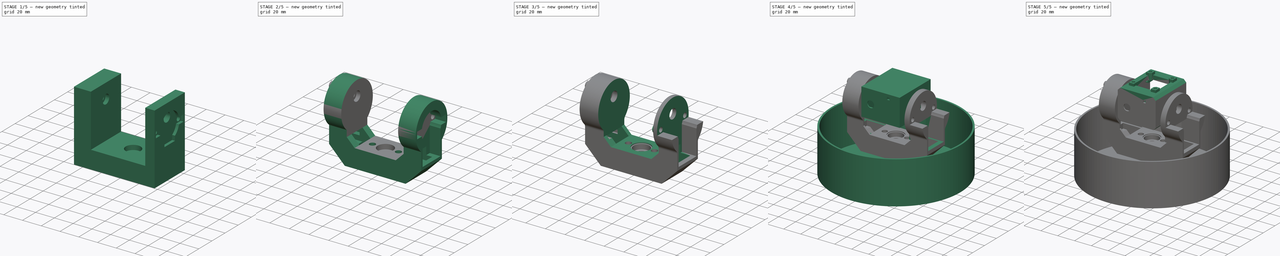
[diagram: build sequence overview — one tinted view per stage of 5, left to right]
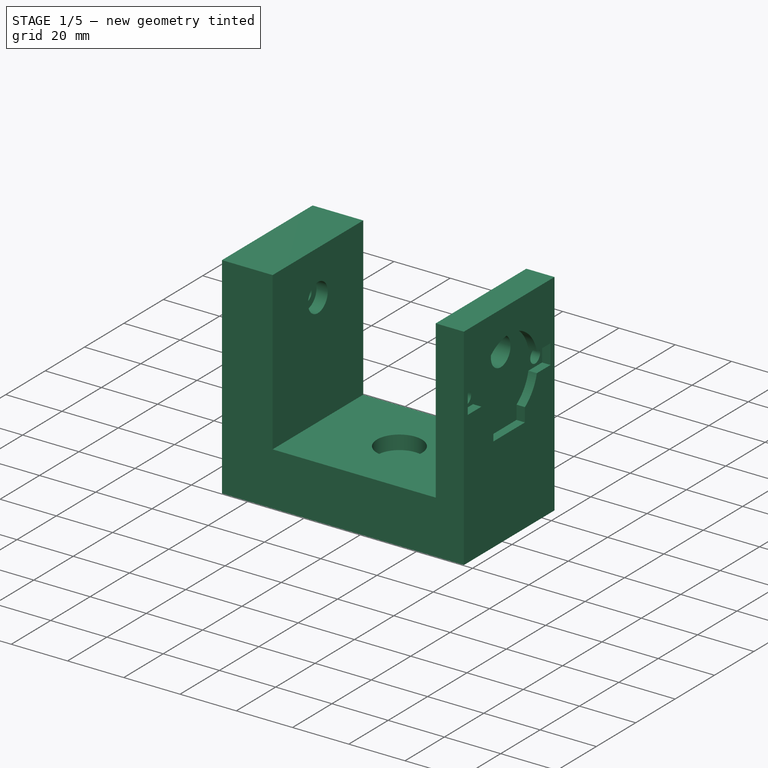
[diagram: stage 1 of 5 — iso view after this stage's code; geometry added in this stage tinted green]
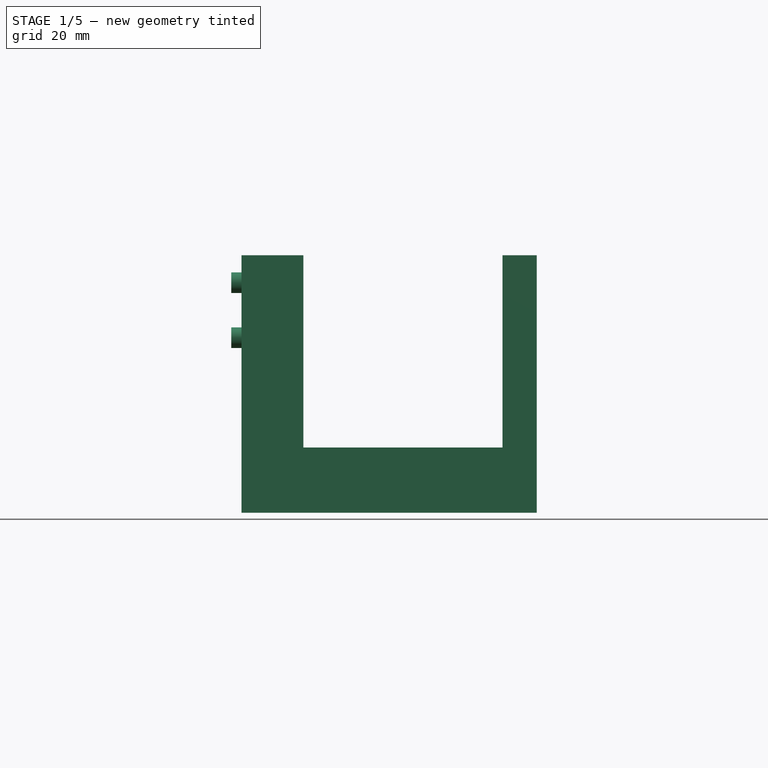
[diagram: stage 1 of 5 — front view after this stage's code; geometry added in this stage tinted green]
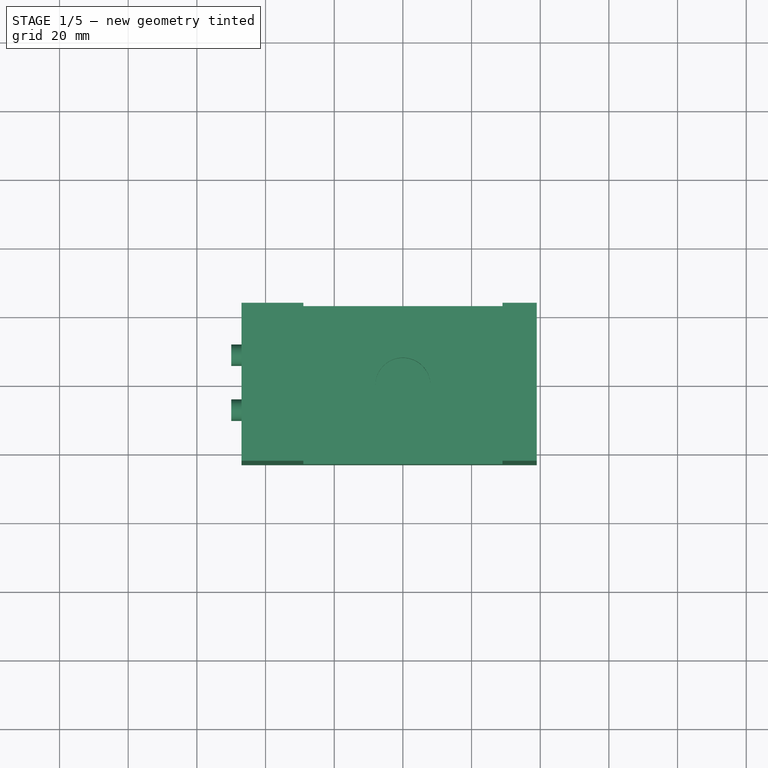
[diagram: stage 1 of 5 — top view after this stage's code; geometry added in this stage tinted green]
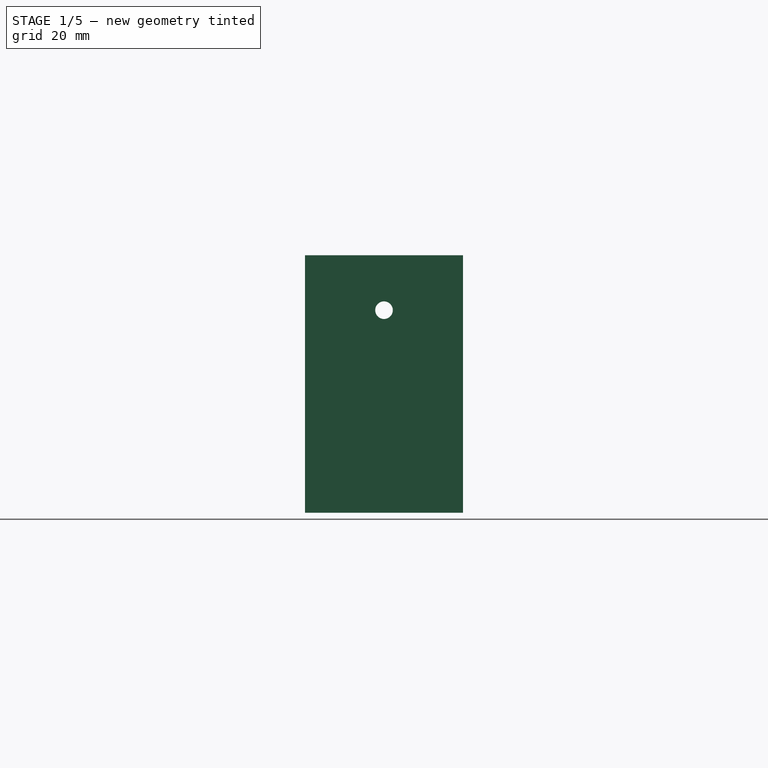
[diagram: stage 1 of 5 — right view after this stage's code; geometry added in this stage tinted green]
FCSTD DOCUMENT  (FreeCAD 1.0R38641 +468 (Git))
Label: Camera Housing_v2
License: All rights reserved
LicenseURL: https://en.wikipedia.org/wiki/All_rights_reserved
objects: Sketcher::SketchObject×53, PartDesign::Pocket×52, PartDesign::Pad×27, PartDesign::Plane×22, PartDesign::Chamfer×7, PartDesign::Mirrored×5, PartDesign::Body×4, PartDesign::Thickness×2, PartDesign::Fillet×2, Spreadsheet::Sheet×1, PartDesign::SubtractiveSphere×1, PartDesign::Hole×1
note: 418 computed .brp shape members not serialized (recipe doc carries the construction recipe); baked Part::Feature solids carry a one-line shape summary decoded from their .brp

FEATURE [PartDesign::Body] Body  label="Camera Housing"
  AllowCompound = false
  Group = -> [Sketch,Pad,Thickness,DatumPlane,Sketch001,Pocket,DatumPlane001,Sketch002,Pocket001,DatumPlane002,Sketch003,Pad001,DatumPlane003,Sketch004,Pad002,DatumPlane004,Sketch005,Pocket002,DatumPlane005,Sketch006,Pocket003,Sphere,DatumPlane006,Sketch007,Hole,Mirrored,DatumPlane007,Sketch008,Pad003,Mirrored001,DatumPlane008,Sketch009,Pocket004,DatumPlane009,Sketch010,Pocket005,DatumPlane010,Sketch011,Pad004,+29 more]
  Origin = -> Origin
  Tip = -> Pocket013
FEATURE [Sketcher::SketchObject] Sketch059
  ArcFitTolerance = 1e-06
  AttachmentSupport = -> [XZ_Plane003]
  FullyConstrained = true
  MakeInternals = false
  MapMode = 5
  Placement = pos=(0,0,0) rot=(1,0,0;1.5708rad)
  sketch-geometry (8):
    g0: LineSegment StartX=-29 StartY=16 StartZ=0 EndX=-29 EndY=-40 EndZ=0
    g1: LineSegment StartX=-29 StartY=-40 StartZ=0 EndX=29 EndY=-40 EndZ=0
    g2: LineSegment StartX=29 StartY=-40 StartZ=0 EndX=29 EndY=16 EndZ=0
    g3: LineSegment StartX=-29 StartY=16 StartZ=0 EndX=-47 EndY=16 EndZ=0
    g4: LineSegment StartX=-47 StartY=16 StartZ=0 EndX=-47 EndY=-59 EndZ=0
    g5: LineSegment StartX=-47 StartY=-59 StartZ=0 EndX=47 EndY=-59 EndZ=0
    g6: LineSegment StartX=47 StartY=-59 StartZ=0 EndX=47 EndY=16 EndZ=0
    g7: LineSegment StartX=47 StartY=16 StartZ=0 EndX=29 EndY=16 EndZ=0
  constraints (24):
    c: Coincident(g0,g1)
    c: Coincident(g1,g2)
    c: Vertical(g0)
    c: Vertical(g2)
    c: Horizontal(g1)
    c: Distance(g-1,g1) = 40
    c: DistanceX(g1,g1) = 58
    c: Distance(g-2,g2) = 29
    c: Coincident(g0,g3)
    c: Horizontal(g3)
    c: Coincident(g3,g4)
    c: Vertical(g4)
    c: Coincident(g4,g5)
    c: Horizontal(g5)
    c: Coincident(g5,g6)
    c: Vertical(g6)
    c: Coincident(g6,g7)
    c: Coincident(g7,g2)
    c: Horizontal(g7)
    c: Equal(g2,g0)
    c: DistanceY(g6,g6) = 75
    c: DistanceY(g2,g2) = 56
    c: Distance(g3,g3) = 18
    c: DistanceX(g7,g7) = 18
FEATURE [PartDesign::Pad] Pad026
  Direction = (0,-1,2e-16)
  Length = 46
  Length2 = 10
  Midplane = true
  Placement = pos=(0,0,0) rot=(1,0,0;1.5708rad)
  Profile = -> Sketch059
  ReferenceAxis = -> Sketch059 [N_Axis]
  Refine = true
  Suppressed = false
  Type = 0
FEATURE [PartDesign::Plane] DatumPlane017
  AttachmentSupport = -> [Pad026]
  Length = 96.9882
  MapMode = 5
  Placement = pos=(47,0,0) rot=(0.707107,0,0.707107;3.14159rad)
  ResizeMode = 0
  Width = 63.0082
FEATURE [Sketcher::SketchObject] Sketch060
  ArcFitTolerance = 1e-06
  AttachmentSupport = -> [DatumPlane017]
  FullyConstrained = true
  MakeInternals = false
  MapMode = 5
  Placement = pos=(47,0,0) rot=(0.707107,0,0.707107;3.14159rad)
  sketch-geometry (5):
    g0: LineSegment StartX=-56.5 StartY=21 StartZ=0 EndX=-56.5 EndY=-21 EndZ=0
    g1: LineSegment StartX=-56.5 StartY=-21 StartZ=0 EndX=13.5 EndY=-21 EndZ=0
    g2: LineSegment StartX=13.5 StartY=-21 StartZ=0 EndX=13.5 EndY=21 EndZ=0
    g3: LineSegment StartX=13.5 StartY=21 StartZ=0 EndX=-56.5 EndY=21 EndZ=0
    g4: GeomPoint [constr] X=-21.5 Y=-1e-16 Z=0
  constraints (13):
    c: Coincident(g0,g1)
    c: Coincident(g1,g2)
    c: Coincident(g2,g3)
    c: Coincident(g3,g0)
    c: Vertical(g0)
    c: Vertical(g2)
    c: Horizontal(g1)
    c: Horizontal(g3)
    c: Symmetric(g2,g0,g4)
    c: PointOnObject(g4,g-1)
    c: DistanceY(g0,g0) = 42
    c: DistanceX(g3,g3) = 70
    c: DistanceX(g4,g-1) = 21.5
FEATURE [PartDesign::Pocket] Pocket050
  BaseFeature = -> Pad026
  Direction = (-1,0,2e-16)
  Length = 13
  Length2 = 5
  Placement = pos=(0,0,0) rot=(1,0,0;1.5708rad)
  Profile = -> Sketch060
  ReferenceAxis = -> Sketch060 [N_Axis]
  Refine = true
  Suppressed = false
  Type = 0
FEATURE [PartDesign::Plane] DatumPlane018
  AttachmentOffset = pos=(0,0,3) rot=(0,0,1;0rad)
  AttachmentSupport = -> [Pocket050]
  Length = 96.9882
  MapMode = 5
  Placement = pos=(37,0,-7e-16) rot=(0.707107,0,0.707107;3.14159rad)
  ResizeMode = 0
  Width = 63.0082
FEATURE [Sketcher::SketchObject] Sketch061
  ArcFitTolerance = 1e-06
  AttachmentSupport = -> [DatumPlane018]
  FullyConstrained = true
  MakeInternals = false
  MapMode = 5
  Placement = pos=(37,0,-7e-16) rot=(0.707107,0,0.707107;3.14159rad)
  sketch-geometry (1):
    g0: Circle CenterX=0 CenterY=0 CenterZ=0 NormalX=0 NormalY=0 NormalZ=1 AngleXU=0 Radius=5
  constraints (2):
    c: Diameter(g0) = 10
    c: Coincident(g0,g-1)
FEATURE [PartDesign::Pocket] Pocket051  label="Motor Pocket"
  BaseFeature = -> Pocket050
  Direction = (-1,0,2e-16)
  Length = 0
  Length2 = 5
  Placement = pos=(0,0,0) rot=(1,0,0;1.5708rad)
  Profile = -> Sketch061
  ReferenceAxis = -> Sketch061 [N_Axis]
  Refine = true
  Suppressed = false
  Type = 3
  UpToFace = -> Pocket050 [Face7]
FEATURE [Sketcher::SketchObject] Sketch062
  ArcFitTolerance = 1e-06
  AttachmentSupport = -> [Pocket051]
  FullyConstrained = true
  MakeInternals = false
  MapMode = 5
  Placement = pos=(34,0,0) rot=(0.707107,0,0.707107;3.14159rad)
  sketch-geometry (14):
    g0: LineSegment StartX=-11.5 StartY=-21 StartZ=0 EndX=-4.5 EndY=-21 EndZ=0
    g1: LineSegment StartX=-4.5 StartY=-21 StartZ=0 EndX=-4.5 EndY=-14.0712 EndZ=0
    g2: LineSegment StartX=-4.5 StartY=21 StartZ=0 EndX=-11.5 EndY=21 EndZ=0
    g3: LineSegment StartX=-11.5 StartY=21 StartZ=0 EndX=-11.5 EndY=14.0712 EndZ=0
    g4: GeomPoint [constr] X=-8 Y=0 Z=0
    g5: ArcOfCircle CenterX=-8 CenterY=0 CenterZ=0 NormalX=0 NormalY=0 NormalZ=1 AngleXU=0 Radius=14.5 StartAngle=1.81458 EndAngle=2.55716
    g6: ArcOfCircle CenterX=-8 CenterY=0 CenterZ=0 NormalX=0 NormalY=0 NormalZ=1 AngleXU=0 Radius=14.5 StartAngle=4.95618 EndAngle=7.61019
    g7: LineSegment StartX=-4.5 StartY=14.0712 StartZ=0 EndX=-4.5 EndY=21 EndZ=0
    g8: LineSegment StartX=-11.5 StartY=-14.0712 StartZ=0 EndX=-11.5 EndY=-21 EndZ=0
    g9: LineSegment StartX=-42.0934 StartY=8 StartZ=0 EndX=-42.0934 EndY=-8 EndZ=0
    g10: LineSegment StartX=-42.0934 StartY=-8 StartZ=0 EndX=-20.0934 EndY=-8 EndZ=0
    g11: LineSegment StartX=-20.0934 StartY=8 StartZ=0 EndX=-42.0934 EndY=8 EndZ=0
    g12: GeomPoint [constr] X=-22.5 Y=0 Z=0
    g13: ArcOfCircle CenterX=-8 CenterY=0 CenterZ=0 NormalX=0 NormalY=0 NormalZ=1 AngleXU=0 Radius=14.5 StartAngle=3.72602 EndAngle=4.4686
  constraints (42):
    c: Coincident(g0,g1)
    c: Coincident(g7,g2)
    c: Coincident(g2,g3)
    c: Coincident(g8,g0)
    c: Horizontal(g0)
    c: Horizontal(g2)
    c: Vertical(g1)
    c: Vertical(g3)
    c: Symmetric(g2,g0,g4)
    c: Distance(g1,g8) = 7
    c: Distance(g0,g2) = 42
    c: PointOnObject(g4,g-1)
    c: Distance(g4,g-1) = 8
    c: Coincident(g5,g4)
    c: Diameter(g5) = 29
    c: PointOnObject(g6,g7)
    c: Equal(g5,g6)
    c: PointOnObject(g13,g8)
    c: Coincident(g5,g6)
    c: Coincident(g1,g6)
    c: PointOnObject(g7,g6)
    c: Coincident(g3,g5)
    c: PointOnObject(g8,g13)
    c: Vertical(g8)
    c: Vertical(g7)
    c: Equal(g2,g0)
    c: Equal(g8,g1)
    c: Coincident(g9,g10)
    c: Coincident(g11,g9)
    c: Vertical(g9)
    c: Horizontal(g10)
    c: Horizontal(g11)
    c: PointOnObject(g12,g5)
    c: PointOnObject(g12,g-1)
    c: DistanceY(g9,g9) = 16
    c: PointOnObject(g10,g13)
    c: Equal(g11,g10)
    c: Equal(g5,g13)
    c: Coincident(g5,g11)
    c: PointOnObject(g13,g10)
    c: Coincident(g5,g13)
    c: DistanceX(g11,g11) = 22
FEATURE [PartDesign::Pocket] Pocket052
  BaseFeature = -> Pocket051
  Direction = (-1,0,2e-16)
  Length = 2
  Length2 = 5
  Placement = pos=(0,0,0) rot=(1,0,0;1.5708rad)
  Profile = -> Sketch062
  ReferenceAxis = -> Sketch062 [N_Axis]
  Refine = true
  Suppressed = false
  Type = 0
FEATURE [Sketcher::SketchObject] Sketch063
  ArcFitTolerance = 1e-06
  AttachmentSupport = -> [Pocket052]
  FullyConstrained = true
  MakeInternals = false
  MapMode = 5
  Placement = pos=(34,0,0) rot=(0.707107,0,0.707107;3.14159rad)
  sketch-geometry (5):
    g0: LineSegment StartX=-56.5 StartY=21 StartZ=0 EndX=-56.5 EndY=-21 EndZ=0
    g1: LineSegment StartX=-56.5 StartY=-21 StartZ=0 EndX=-25 EndY=-21 EndZ=0
    g2: LineSegment StartX=-25 StartY=-21 StartZ=0 EndX=-25 EndY=21 EndZ=0
    g3: LineSegment StartX=-25 StartY=21 StartZ=0 EndX=-56.5 EndY=21 EndZ=0
    g4: GeomPoint [constr] X=-40.75 Y=0 Z=0
  constraints (13):
    c: Coincident(g0,g1)
    c: Coincident(g1,g2)
    c: Coincident(g2,g3)
    c: Coincident(g3,g0)
    c: Vertical(g0)
    c: Vertical(g2)
    c: Horizontal(g1)
    c: Horizontal(g3)
    c: Symmetric(g2,g0,g4)
    c: PointOnObject(g4,g-1)
    c: DistanceY(g2,g2) = 42
    c: Distance(g-2,g0) = 56.5
    c: Distance(g-2,g2) = 25
FEATURE [PartDesign::Pocket] Pocket053
  BaseFeature = -> Pocket052
  Direction = (-1,0,2e-16)
  Length = 2
  Length2 = 5
  Placement = pos=(0,0,0) rot=(1,0,0;1.5708rad)
  Profile = -> Sketch063
  ReferenceAxis = -> Sketch063 [N_Axis]
  Refine = true
  Suppressed = false
  Type = 0
FEATURE [Sketcher::SketchObject] Sketch064
  ArcFitTolerance = 1e-06
  AttachmentSupport = -> [Pocket053]
  FullyConstrained = true
  MakeInternals = false
  MapMode = 5
  Placement = pos=(32,0,-8e-15) rot=(0.707107,0,0.707107;3.14159rad)
  sketch-geometry (3):
    g0: LineSegment [constr] StartX=-8 StartY=17.5 StartZ=0 EndX=-8 EndY=-17.5 EndZ=0
    g1: Circle CenterX=-8 CenterY=17.5 CenterZ=0 NormalX=0 NormalY=0 NormalZ=1 AngleXU=0 Radius=2.5
    g2: Circle CenterX=-8 CenterY=-17.5 CenterZ=0 NormalX=0 NormalY=0 NormalZ=1 AngleXU=0 Radius=2.5
  constraints (8):
    c: Vertical(g0)
    c: Distance(g-1,g0) = 8
    c: Equal(g2,g1)
    c: Diameter(g1) = 5
    c: DistanceY(g2,g1) = 35
    c: Distance(g1,g-1) = 17.5
    c: Coincident(g0,g2)
    c: Coincident(g0,g1)
FEATURE [PartDesign::Pocket] Pocket054
  BaseFeature = -> Pocket053
  Direction = (-1,0,2e-16)
  Length = 2
  Length2 = 5
  Placement = pos=(0,0,0) rot=(1,0,0;1.5708rad)
  Profile = -> Sketch064
  ReferenceAxis = -> Sketch064 [N_Axis]
  Refine = true
  Suppressed = false
  Type = 0
FEATURE [PartDesign::Pad] Pad027
  BaseFeature = -> Pocket054
  Direction = (1,0,0)
  Length = 5
  Length2 = 10
  Placement = pos=(0,0,0) rot=(1,0,0;1.5708rad)
  Profile = -> Pocket054 [Face21,Face18,Face24]
  Refine = true
  Suppressed = false
  Type = 0
FEATURE [PartDesign::Pad] Pad028
  BaseFeature = -> Pad027
  Direction = (1,0,-2e-16)
  Length = 4
  Length2 = 10
  Placement = pos=(0,0,0) rot=(1,0,0;1.5708rad)
  Profile = -> Pad027 [Face16]
  Refine = true
  Suppressed = false
  Type = 0
FEATURE [Sketcher::SketchObject] Sketch065
  ArcFitTolerance = 1e-06
  AttachmentSupport = -> [Pad028]
  FullyConstrained = true
  MakeInternals = false
  MapMode = 5
  Placement = pos=(36,0,-9e-15) rot=(0.707107,0,0.707107;3.14159rad)
  sketch-geometry (5):
    g0: LineSegment StartX=-56.5 StartY=21 StartZ=0 EndX=-56.5 EndY=-21 EndZ=0
    g1: LineSegment StartX=-56.5 StartY=-21 StartZ=0 EndX=-25 EndY=-21 EndZ=0
    g2: LineSegment StartX=-25 StartY=-21 StartZ=0 EndX=-25 EndY=21 EndZ=0
    g3: LineSegment StartX=-25 StartY=21 StartZ=0 EndX=-56.5 EndY=21 EndZ=0
    g4: GeomPoint [constr] X=-40.75 Y=0 Z=0
  constraints (13):
    c: Coincident(g0,g1)
    c: Coincident(g1,g2)
    c: Coincident(g2,g3)
    c: Coincident(g3,g0)
    c: Vertical(g0)
    c: Vertical(g2)
    c: Horizontal(g1)
    c: Horizontal(g3)
    c: Symmetric(g2,g0,g4)
    c: PointOnObject(g4,g-1)
    c: DistanceY(g2,g2) = 42
    c: Distance(g-2,g0) = 56.5
    c: Distance(g-2,g2) = 25
FEATURE [PartDesign::Pocket] Pocket055
  BaseFeature = -> Pad028
  Direction = (-1,0,2e-16)
  Length = 5
  Length2 = 5
  Placement = pos=(0,0,0) rot=(1,0,0;1.5708rad)
  Profile = -> Sketch065
  ReferenceAxis = -> Sketch065 [N_Axis]
  Refine = true
  Suppressed = false
  Type = 0
FEATURE [PartDesign::Plane] DatumPlane019
  AttachmentOffset = pos=(0,0,3) rot=(0,0,1;0rad)
  AttachmentSupport = -> [Pocket055]
  Length = 96.9882
  MapMode = 5
  Placement = pos=(-50,0,-7e-16) rot=(0.707107,0,-0.707107;3.14159rad)
  ResizeMode = 0
  Width = 63.0082
FEATURE [Sketcher::SketchObject] Sketch066
  ArcFitTolerance = 1e-06
  AttachmentSupport = -> [DatumPlane019]
  FullyConstrained = true
  MakeInternals = false
  MapMode = 5
  Placement = pos=(-50,0,-7e-16) rot=(0.707107,0,-0.707107;3.14159rad)
  sketch-geometry (1):
    g0: Circle CenterX=0 CenterY=0 CenterZ=0 NormalX=0 NormalY=0 NormalZ=1 AngleXU=0 Radius=2.5625
  constraints (2):
    c: Diameter(g0) = 5.125
    c: Coincident(g0,g-1)
FEATURE [PartDesign::Pocket] Pocket056
  BaseFeature = -> Pocket055
  Direction = (1,0,2e-16)
  Length = 0
  Length2 = 5
  Placement = pos=(0,0,0) rot=(1,0,0;1.5708rad)
  Profile = -> Sketch066
  ReferenceAxis = -> Sketch066 [N_Axis]
  Refine = true
  Suppressed = false
  Type = 3
  UpToFace = -> Pocket055 [Face1]
FEATURE [PartDesign::Plane] DatumPlane020
  AttachmentOffset = pos=(0,0,3) rot=(0,0,1;0rad)
  AttachmentSupport = -> [Pocket056]
  Length = 96.9882
  MapMode = 5
  Placement = pos=(-26,0,-7e-16) rot=(0.707107,0,0.707107;3.14159rad)
  ResizeMode = 0
  Width = 63.0082
FEATURE [Sketcher::SketchObject] Sketch067
  ArcFitTolerance = 1e-06
  AttachmentSupport = -> [DatumPlane020]
  FullyConstrained = true
  MakeInternals = false
  MapMode = 5
  Placement = pos=(-26,0,-7e-16) rot=(0.707107,0,0.707107;3.14159rad)
  sketch-geometry (1):
    g0: Circle CenterX=0 CenterY=0 CenterZ=0 NormalX=0 NormalY=0 NormalZ=1 AngleXU=0 Radius=5
  constraints (2):
    c: Diameter(g0) = 10
    c: Coincident(g0,g-1)
FEATURE [PartDesign::Pocket] Pocket057
  BaseFeature = -> Pocket056
  Direction = (-1,0,2e-16)
  Length = 7
  Length2 = 5
  Placement = pos=(0,0,0) rot=(1,0,0;1.5708rad)
  Profile = -> Sketch067
  ReferenceAxis = -> Sketch067 [N_Axis]
  Refine = true
  Suppressed = false
  Type = 0
FEATURE [PartDesign::Plane] DatumPlane021
  AttachmentOffset = pos=(0,0,3) rot=(0,0,1;0rad)
  AttachmentSupport = -> [Pocket057]
  Length = 96.9882
  MapMode = 5
  Placement = pos=(-50,0,-7e-16) rot=(0.707107,0,-0.707107;3.14159rad)
  ResizeMode = 0
  Width = 63.0082
FEATURE [Sketcher::SketchObject] Sketch068
  ArcFitTolerance = 1e-06
  AttachmentSupport = -> [DatumPlane021]
  FullyConstrained = true
  MakeInternals = false
  MapMode = 5
  Placement = pos=(-50,0,-7e-16) rot=(0.707107,0,-0.707107;3.14159rad)
  sketch-geometry (1):
    g0: Circle CenterX=0 CenterY=0 CenterZ=0 NormalX=0 NormalY=0 NormalZ=1 AngleXU=0 Radius=4.75
  constraints (2):
    c: Diameter(g0) = 9.5
    c: Coincident(g0,g-1)
FEATURE [PartDesign::Pocket] Pocket058
  BaseFeature = -> Pocket057
  Direction = (1,0,2e-16)
  Length = 11
  Length2 = 5
  Placement = pos=(0,0,0) rot=(1,0,0;1.5708rad)
  Profile = -> Sketch068
  ReferenceAxis = -> Sketch068 [N_Axis]
  Refine = true
  Suppressed = false
  Type = 0
FEATURE [Sketcher::SketchObject] Sketch069
  ArcFitTolerance = 1e-06
  AttachmentSupport = -> [Pocket058]
  FullyConstrained = true
  MakeInternals = false
  MapMode = 5
  Placement = pos=(-47,0,0) rot=(0.707107,0,-0.707107;3.14159rad)
  sketch-geometry (9):
    g0: LineSegment [constr] StartX=-8 StartY=-8 StartZ=0 EndX=8 EndY=-8 EndZ=0
    g1: LineSegment [constr] StartX=8 StartY=-8 StartZ=0 EndX=8 EndY=8 EndZ=0
    g2: LineSegment [constr] StartX=8 StartY=8 StartZ=0 EndX=-8 EndY=8 EndZ=0
    g3: LineSegment [constr] StartX=-8 StartY=8 StartZ=0 EndX=-8 EndY=-8 EndZ=0
    g4: GeomPoint [constr] X=0 Y=0 Z=0
    g5: Circle CenterX=-8 CenterY=8 CenterZ=0 NormalX=0 NormalY=0 NormalZ=1 AngleXU=0 Radius=1.75
    g6: Circle CenterX=8 CenterY=8 CenterZ=0 NormalX=0 NormalY=0 NormalZ=1 AngleXU=0 Radius=1.75
    g7: Circle CenterX=8 CenterY=-8 CenterZ=0 NormalX=0 NormalY=0 NormalZ=1 AngleXU=0 Radius=1.75
    g8: Circle CenterX=-8 CenterY=-8 CenterZ=0 NormalX=0 NormalY=0 NormalZ=1 AngleXU=0 Radius=1.75
  constraints (20):
    c: Coincident(g0,g1)
    c: Coincident(g1,g2)
    c: Coincident(g2,g3)
    c: Coincident(g3,g0)
    c: Horizontal(g0)
    c: Horizontal(g2)
    c: Vertical(g1)
    c: Vertical(g3)
    c: Symmetric(g2,g0,g4)
    c: Distance(g1,g3) = 16
    c: Distance(g0,g2) = 16
    c: Coincident(g4,g-1)
    c: Diameter(g5) = 3.5
    c: Coincident(g5,g2)
    c: Diameter(g6) = 3.5
    c: Coincident(g6,g1)
    c: Diameter(g7) = 3.5
    c: Coincident(g7,g0)
    c: Diameter(g8) = 3.5
    c: Coincident(g8,g0)
FEATURE [PartDesign::Pocket] Pocket059
  BaseFeature = -> Pocket058
  Direction = (1,0,2e-16)
  Length = 8
  Length2 = 5
  Placement = pos=(0,0,0) rot=(1,0,0;1.5708rad)
  Profile = -> Sketch069
  ReferenceAxis = -> Sketch069 [N_Axis]
  Refine = true
  Suppressed = false
  Type = 0
FEATURE [Sketcher::SketchObject] Sketch070
  ArcFitTolerance = 1e-06
  AttachmentSupport = -> [Pocket059]
  FullyConstrained = true
  MakeInternals = false
  MapMode = 5
  Placement = pos=(-47,0,0) rot=(0.707107,0,-0.707107;3.14159rad)
  sketch-geometry (13):
    g0: LineSegment [constr] StartX=-8 StartY=-8 StartZ=0 EndX=8 EndY=-8 EndZ=0
    g1: LineSegment [constr] StartX=8 StartY=-8 StartZ=0 EndX=8 EndY=8 EndZ=0
    g2: LineSegment [constr] StartX=8 StartY=8 StartZ=0 EndX=-8 EndY=8 EndZ=0
    g3: LineSegment [constr] StartX=-8 StartY=8 StartZ=0 EndX=-8 EndY=-8 EndZ=0
    g4: GeomPoint [constr] X=0 Y=0 Z=0
    g5: Circle CenterX=-8 CenterY=-8 CenterZ=0 NormalX=0 NormalY=0 NormalZ=1 AngleXU=0 Radius=1.75
    g6: Circle CenterX=-8 CenterY=8 CenterZ=0 NormalX=0 NormalY=0 NormalZ=1 AngleXU=0 Radius=1.75
    g7: Circle CenterX=8 CenterY=8 CenterZ=0 NormalX=0 NormalY=0 NormalZ=1 AngleXU=0 Radius=1.75
    g8: Circle CenterX=8 CenterY=-8 CenterZ=0 NormalX=0 NormalY=0 NormalZ=1 AngleXU=0 Radius=1.75
    g9: Circle CenterX=-8 CenterY=-8 CenterZ=0 NormalX=0 NormalY=0 NormalZ=1 AngleXU=0 Radius=3
    g10: Circle CenterX=-8 CenterY=8 CenterZ=0 NormalX=0 NormalY=0 NormalZ=1 AngleXU=0 Radius=3
    g11: Circle CenterX=8 CenterY=8 CenterZ=0 NormalX=0 NormalY=0 NormalZ=1 AngleXU=0 Radius=3
    g12: Circle CenterX=8 CenterY=-8 CenterZ=0 NormalX=0 NormalY=0 NormalZ=1 AngleXU=0 Radius=3
  constraints (28):
    c: Coincident(g0,g1)
    c: Coincident(g1,g2)
    c: Coincident(g2,g3)
    c: Coincident(g3,g0)
    c: Horizontal(g0)
    c: Horizontal(g2)
    c: Vertical(g1)
    c: Vertical(g3)
    c: Symmetric(g2,g0,g4)
    c: Coincident(g4,g-1)
    c: DistanceX(g2,g2) = 16
    c: DistanceY(g3,g3) = 16
    c: Diameter(g5) = 3.5
    c: Coincident(g5,g0)
    c: Diameter(g6) = 3.5
    c: Coincident(g6,g2)
    c: Diameter(g7) = 3.5
    c: Coincident(g7,g1)
    c: Diameter(g8) = 3.5
    c: Coincident(g8,g0)
    c: Diameter(g9) = 6
    c: Coincident(g9,g0)
    c: Coincident(g10,g2)
    c: Coincident(g11,g1)
    c: Coincident(g12,g0)
    c: Equal(g12,g11)
    c: Equal(g11,g10)
    c: Equal(g10,g9)
FEATURE [PartDesign::Pad] Pad029
  BaseFeature = -> Pocket059
  Direction = (-1,0,-2e-16)
  Length = 3
  Length2 = 10
  Placement = pos=(0,0,0) rot=(1,0,0;1.5708rad)
  Profile = -> Sketch070
  ReferenceAxis = -> Sketch070 [N_Axis]
  Refine = true
  Suppressed = false
  Type = 0
FEATURE [PartDesign::Pad] Pad030
  BaseFeature = -> Pad029
  Direction = (-2e-16,-2e-16,-1)
  Length = 3
  Length2 = 10
  Placement = pos=(0,0,0) rot=(1,0,0;1.5708rad)
  Profile = -> Pad029 [Face28]
  Refine = true
  Suppressed = false
  Type = 0
FEATURE [PartDesign::Fillet] Fillet
  Base = -> Pad030 [Edge48]
  BaseFeature = -> Pad030
  Placement = pos=(0,0,0) rot=(1,0,0;1.5708rad)
  Radius = 0.5
  Refine = true
  SupportTransform = false
  Suppressed = false
  UseAllEdges = false
FEATURE [PartDesign::Plane] DatumPlane022
  AttachmentOffset = pos=(0,0,3) rot=(0,0,1;0rad)
  AttachmentSupport = -> [Fillet]
  Length = 110.934
  MapMode = 5
  Placement = pos=(0,-1.76e-14,-37) rot=(0,0,1;3.14159rad)
  ResizeMode = 0
  Width = 63.974
FEATURE [Sketcher::SketchObject] Sketch071
  ArcFitTolerance = 1e-06
  AttachmentSupport = -> [DatumPlane022]
  FullyConstrained = true
  MakeInternals = false
  MapMode = 5
  Placement = pos=(0,-1.76e-14,-37) rot=(0,0,1;3.14159rad)
  sketch-geometry (1):
    g0: Circle CenterX=0 CenterY=0 CenterZ=0 NormalX=0 NormalY=0 NormalZ=1 AngleXU=0 Radius=8
  constraints (2):
    c: Diameter(g0) = 16
    c: Coincident(g0,g-1)
FEATURE [PartDesign::Pocket] Pocket060
  BaseFeature = -> Fillet
  Direction = (0,0,-1)
  Length = 8
  Length2 = 5
  Placement = pos=(0,0,0) rot=(1,0,0;1.5708rad)
  Profile = -> Sketch071
  ReferenceAxis = -> Sketch071 [N_Axis]
  Refine = true
  Suppressed = false
  Type = 0
FEATURE [Sketcher::SketchObject] Sketch072
  ArcFitTolerance = 1e-06
  AttachmentSupport = -> [DatumPlane022]
  FullyConstrained = true
  MakeInternals = false
  MapMode = 5
  Placement = pos=(0,-1.76e-14,-37) rot=(0,0,1;3.14159rad)
  sketch-geometry (1):
    g0: Circle CenterX=0 CenterY=0 CenterZ=0 NormalX=0 NormalY=0 NormalZ=1 AngleXU=0 Radius=9
  constraints (2):
    c: Diameter(g0) = 18
    c: Coincident(g0,g-1)
FEATURE [PartDesign::Pad] Pad040
  BaseFeature = -> Pocket060
  Direction = (1,0,-2e-16)
  Length = 10
  Length2 = 10
  Placement = pos=(0,0,0) rot=(1,0,0;1.5708rad)
  Profile = -> Pocket060 [Face42]
  Refine = true
  Suppressed = false
  Type = 3
  UpToFace = -> Pocket060 [Face40]
FEATURE [PartDesign::Pocket] Pocket085
  BaseFeature = -> Pad040
  Direction = (-1,0,0)
  Length = 8
  Length2 = 5
  Placement = pos=(0,0,0) rot=(1,0,0;1.5708rad)
  Profile = -> Pad040 [Face16]
  Refine = true
  Suppressed = false
  Type = 0
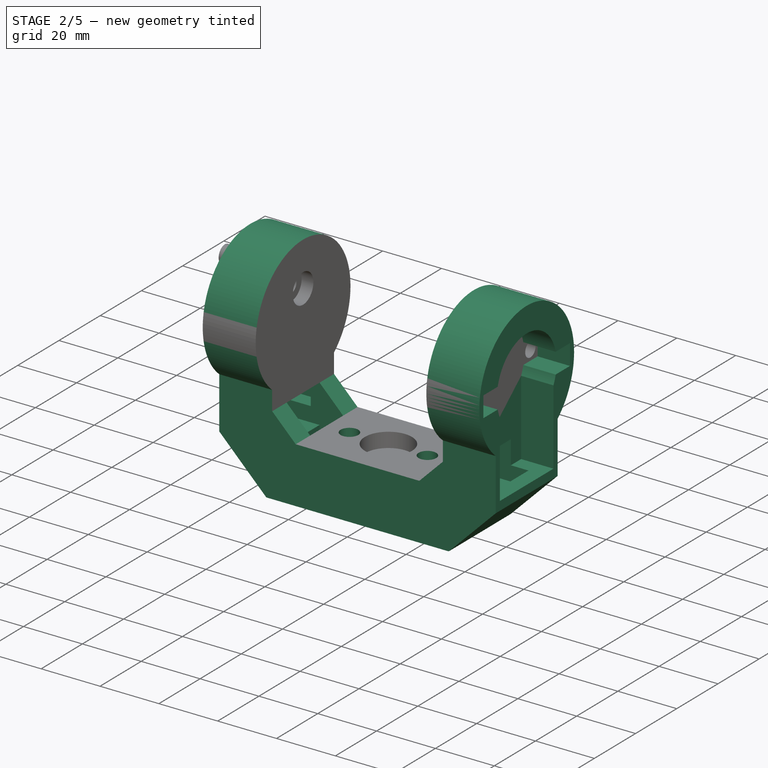
[diagram: stage 2 of 5 — iso view after this stage's code; geometry added in this stage tinted green]
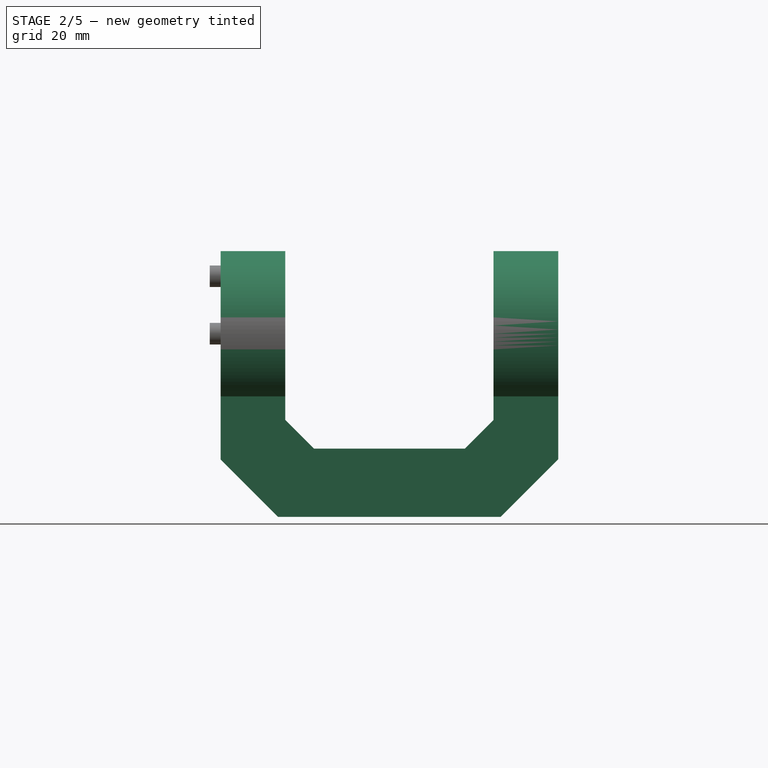
[diagram: stage 2 of 5 — front view after this stage's code; geometry added in this stage tinted green]
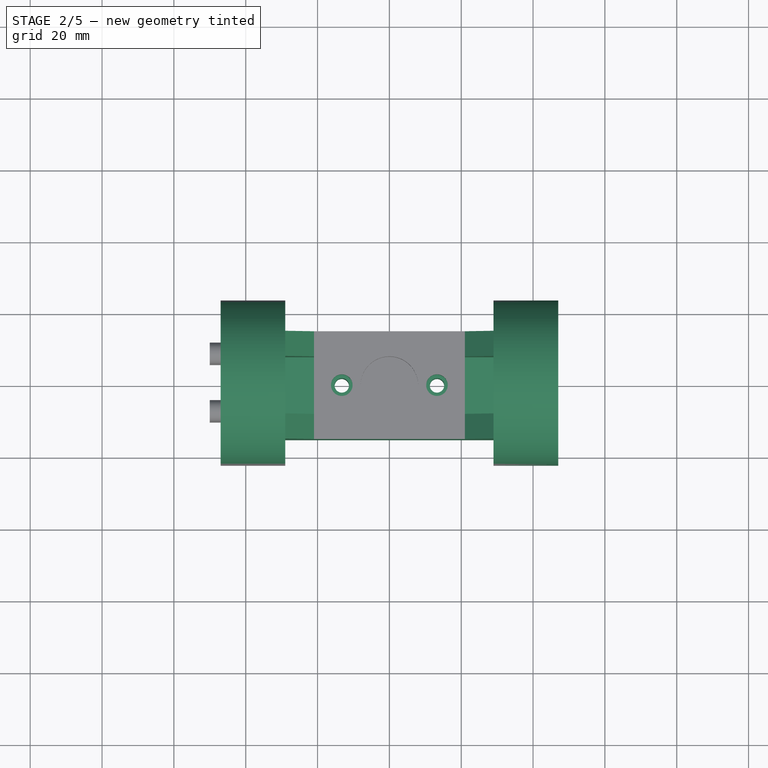
[diagram: stage 2 of 5 — top view after this stage's code; geometry added in this stage tinted green]
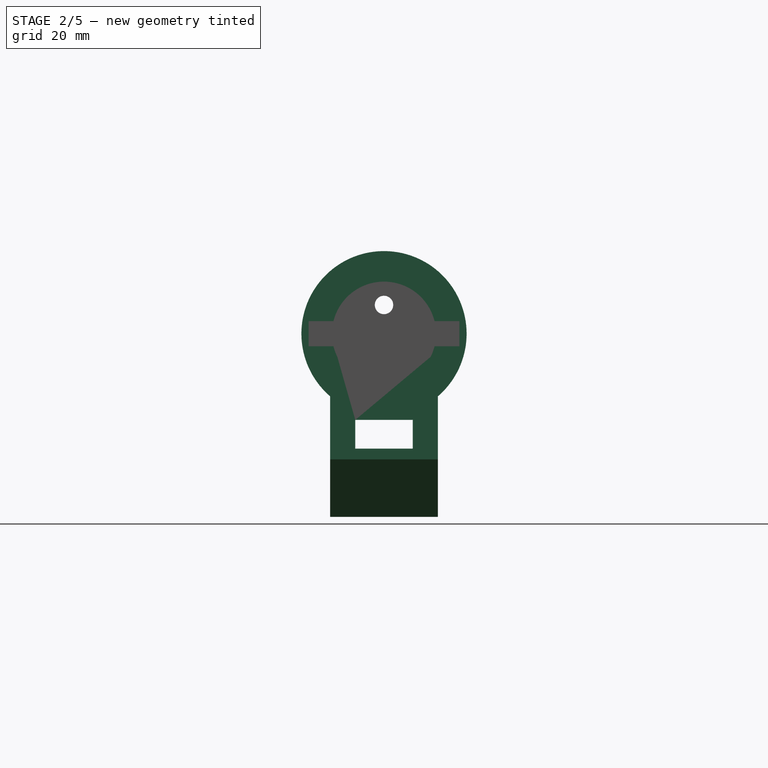
[diagram: stage 2 of 5 — right view after this stage's code; geometry added in this stage tinted green]
FEATURE [PartDesign::Plane] DatumPlane029
  AttachmentSupport = -> [Pocket085]
  Length = 96.9882
  MapMode = 5
  Placement = pos=(39,0,0) rot=(0.707107,0,0.707107;3.14159rad)
  ResizeMode = 0
  Width = 63.0082
FEATURE [Sketcher::SketchObject] Sketch096
  ArcFitTolerance = 1e-06
  AttachmentSupport = -> [DatumPlane029]
  ExternalGeometry = -> [Pocket085]
  FullyConstrained = true
  MakeInternals = false
  MapMode = 5
  Placement = pos=(39,0,0) rot=(0.707107,0,0.707107;3.14159rad)
  sketch-geometry (4):
    g0: ArcOfCircle CenterX=-8 CenterY=0 CenterZ=0 NormalX=0 NormalY=0 NormalZ=1 AngleXU=0 Radius=23 StartAngle=4.71239 EndAngle=7.85398
    g1: LineSegment StartX=-8 StartY=23 StartZ=0 EndX=16 EndY=23 EndZ=0
    g2: LineSegment StartX=16 StartY=23 StartZ=0 EndX=16 EndY=-23 EndZ=0
    g3: LineSegment StartX=16 StartY=-23 StartZ=0 EndX=-8 EndY=-23 EndZ=0
  constraints (10):
    c: Coincident(g1,g-3)
    c: Horizontal(g1)
    c: Coincident(g1,g2)
    c: Coincident(g2,g-4)
    c: Coincident(g2,g3)
    c: Tangent(g0,g-4) = -1.5708
    c: Coincident(g0,g1)
    c: PointOnObject(g0,g-1)
    c: Coincident(g0,g3)
    c: Distance(g0,g-1) = 8
FEATURE [PartDesign::Pocket] Pocket086
  BaseFeature = -> Pocket085
  Direction = (-1,0,2e-16)
  Length = 5
  Length2 = 5
  Placement = pos=(0,0,0) rot=(1,0,0;1.5708rad)
  Profile = -> Sketch096
  ReferenceAxis = -> Sketch096 [N_Axis]
  Refine = true
  Suppressed = false
  Type = 1
FEATURE [Sketcher::SketchObject] Sketch097
  ArcFitTolerance = 1e-06
  AttachmentSupport = -> [Pocket086]
  FullyConstrained = true
  MakeInternals = false
  MapMode = 5
  Placement = pos=(39,0,0) rot=(0.707107,0,0.707107;3.14159rad)
  sketch-geometry (10):
    g0: ArcOfCircle CenterX=-8 CenterY=0 CenterZ=0 NormalX=0 NormalY=0 NormalZ=1 AngleXU=0 Radius=23 StartAngle=3.85204 EndAngle=8.71433
    g1: LineSegment StartX=-65.88 StartY=15 StartZ=0 EndX=-65.88 EndY=-15 EndZ=0
    g2: LineSegment StartX=-65.88 StartY=-15 StartZ=0 EndX=-25.4356 EndY=-15 EndZ=0
    g3: LineSegment StartX=-25.4356 StartY=15 StartZ=0 EndX=-65.88 EndY=15 EndZ=0
    g4: GeomPoint [constr] X=-45.6578 Y=0 Z=0
    g5: LineSegment StartX=-73.96 StartY=30.47 StartZ=0 EndX=-73.96 EndY=-30.47 EndZ=0
    g6: LineSegment StartX=-73.96 StartY=-30.47 StartZ=0 EndX=73.96 EndY=-30.47 EndZ=0
    g7: LineSegment StartX=73.96 StartY=-30.47 StartZ=0 EndX=73.96 EndY=30.47 EndZ=0
    g8: LineSegment StartX=73.96 StartY=30.47 StartZ=0 EndX=-73.96 EndY=30.47 EndZ=0
    g9: GeomPoint [constr] X=0 Y=0 Z=0
  constraints (26):
    c: Diameter(g0) = 46
    c: PointOnObject(g0,g-1)
    c: Distance(g0,g-1) = 8
    c: Coincident(g1,g2)
    c: Coincident(g3,g1)
    c: Vertical(g1)
    c: Horizontal(g2)
    c: Horizontal(g3)
    c: Symmetric(g2,g1,g4)
    c: PointOnObject(g4,g-1)
    c: Coincident(g0,g2)
    c: Distance(g1,g-2) = 65.88
    c: DistanceY(g1,g1) = 30
    c: Coincident(g0,g3)
    c: Coincident(g5,g6)
    c: Coincident(g6,g7)
    c: Coincident(g7,g8)
    c: Coincident(g8,g5)
    c: Vertical(g5)
    c: Vertical(g7)
    c: Horizontal(g6)
    c: Horizontal(g8)
    c: Symmetric(g7,g5,g9)
    c: Coincident(g9,g-1)
    c: DistanceX(g8,g8) = 147.92
    c: DistanceY(g7,g7) = 60.94
FEATURE [PartDesign::Pocket] Pocket087
  BaseFeature = -> Pocket086
  Direction = (-1,0,2e-16)
  Length = 5
  Length2 = 5
  Placement = pos=(0,0,0) rot=(1,0,0;1.5708rad)
  Profile = -> Sketch097
  ReferenceAxis = -> Sketch097 [N_Axis]
  Refine = true
  Suppressed = false
  Type = 1
FEATURE [PartDesign::Pocket] Pocket088
  BaseFeature = -> Pocket087
  Direction = (-2e-16,0,-1)
  Length = 0
  Length2 = 5
  Placement = pos=(0,0,0) rot=(1,0,0;1.5708rad)
  Profile = -> Pocket087 [Face8]
  Refine = true
  Suppressed = false
  Type = 3
  UpToFace = -> Pocket087 [Face26]
FEATURE [Sketcher::SketchObject] Sketch098
  ArcFitTolerance = 1e-06
  AttachmentSupport = -> [Pocket088]
  ExternalGeometry = -> [Pocket088]
  FullyConstrained = true
  MakeInternals = false
  MapMode = 5
  Placement = pos=(36,0,0) rot=(0.707107,0,0.707107;3.14159rad)
  sketch-geometry (5):
    g0: LineSegment StartX=-40 StartY=8 StartZ=0 EndX=-40 EndY=-8 EndZ=0
    g1: LineSegment StartX=-40 StartY=-8 StartZ=0 EndX=-32 EndY=-8 EndZ=0
    g2: LineSegment StartX=-32 StartY=-8 StartZ=0 EndX=-32 EndY=8 EndZ=0
    g3: LineSegment StartX=-32 StartY=8 StartZ=0 EndX=-40 EndY=8 EndZ=0
    g4: GeomPoint [constr] X=-36 Y=0 Z=0
  constraints (12):
    c: Coincident(g0,g1)
    c: Coincident(g1,g2)
    c: Coincident(g2,g3)
    c: Coincident(g3,g0)
    c: Vertical(g0)
    c: Vertical(g2)
    c: Horizontal(g1)
    c: Horizontal(g3)
    c: Symmetric(g2,g0,g4)
    c: PointOnObject(g4,g-1)
    c: Coincident(g-4,g0)
    c: DistanceX(g3,g3) = 8
FEATURE [PartDesign::Pocket] Pocket089
  BaseFeature = -> Pocket088
  Direction = (-1,0,2e-16)
  Length = 0
  Length2 = 5
  Placement = pos=(0,0,0) rot=(1,0,0;1.5708rad)
  Profile = -> Sketch098
  ReferenceAxis = -> Sketch098 [N_Axis]
  Refine = true
  Suppressed = false
  Type = 3
  UpToFace = -> Pocket088 [Face16]
FEATURE [PartDesign::Pad] Pad041
  BaseFeature = -> Pocket089
  Direction = (1,0,0)
  Length = 8
  Length2 = 10
  Placement = pos=(0,0,0) rot=(1,0,0;1.5708rad)
  Profile = -> Pocket089 [Edge57,Edge24,Face5]
  Refine = true
  Suppressed = false
  Type = 0
FEATURE [Sketcher::SketchObject] Sketch099
  ArcFitTolerance = 1e-06
  AttachmentSupport = -> [Pad041]
  ExternalGeometry = -> [Pad041]
  FullyConstrained = true
  MakeInternals = false
  MapMode = 5
  Placement = pos=(-29,0,0) rot=(0.707107,0,0.707107;3.14159rad)
  sketch-geometry (4):
    g0: LineSegment StartX=-40 StartY=8 StartZ=0 EndX=-40 EndY=-8 EndZ=0
    g1: LineSegment StartX=-40 StartY=-8 StartZ=0 EndX=-32 EndY=-8 EndZ=0
    g2: LineSegment StartX=-32 StartY=-8 StartZ=0 EndX=-32 EndY=8 EndZ=0
    g3: LineSegment StartX=-32 StartY=8 StartZ=0 EndX=-40 EndY=8 EndZ=0
  constraints (10):
    c: Coincident(g0,g1)
    c: Coincident(g1,g2)
    c: Coincident(g2,g3)
    c: Coincident(g3,g0)
    c: Vertical(g0)
    c: Vertical(g2)
    c: Horizontal(g1)
    c: Horizontal(g3)
    c: Coincident(g0,g-4)
    c: Coincident(g1,g-3)
FEATURE [PartDesign::Pocket] Pocket090
  BaseFeature = -> Pad041
  Direction = (-1,0,2e-16)
  Length = 5
  Length2 = 5
  Placement = pos=(0,0,0) rot=(1,0,0;1.5708rad)
  Profile = -> Sketch099
  ReferenceAxis = -> Sketch099 [N_Axis]
  Refine = true
  Suppressed = false
  Type = 1
FEATURE [Sketcher::SketchObject] Sketch100
  ArcFitTolerance = 1e-06
  AttachmentSupport = -> [Pocket090]
  FullyConstrained = true
  MakeInternals = false
  MapMode = 5
  Placement = pos=(0,-2.84e-14,-40) rot=(0,0,1;3.14159rad)
  sketch-geometry (2):
    g0: Circle CenterX=-13.25 CenterY=0 CenterZ=0 NormalX=0 NormalY=0 NormalZ=1 AngleXU=0 Radius=2
    g1: Circle CenterX=13.25 CenterY=0 CenterZ=0 NormalX=0 NormalY=0 NormalZ=1 AngleXU=0 Radius=2
  constraints (6):
    c: Diameter(g0) = 4
    c: PointOnObject(g0,g-1)
    c: Diameter(g1) = 4
    c: PointOnObject(g1,g-1)
    c: DistanceX(g0,g1) = 26.5
    c: Distance(g1,g-2) = 13.25
FEATURE [PartDesign::Pocket] Pocket091
  BaseFeature = -> Pocket090
  Direction = (0,0,-1)
  Length = 5
  Length2 = 5
  Placement = pos=(0,0,0) rot=(1,0,0;1.5708rad)
  Profile = -> Sketch100
  ReferenceAxis = -> Sketch100 [N_Axis]
  Refine = true
  Suppressed = false
  Type = 1
FEATURE [Sketcher::SketchObject] Sketch101
  ArcFitTolerance = 1e-06
  AttachmentSupport = -> [Pocket091]
  ExternalGeometry = -> [Pocket091]
  FullyConstrained = true
  MakeInternals = false
  MapMode = 5
  Placement = pos=(0,-2.84e-14,-40) rot=(0,0,1;3.14159rad)
  sketch-geometry (2):
    g0: Circle CenterX=-13.25 CenterY=0 CenterZ=0 NormalX=0 NormalY=0 NormalZ=1 AngleXU=0 Radius=3
    g1: Circle CenterX=13.25 CenterY=0 CenterZ=0 NormalX=0 NormalY=0 NormalZ=1 AngleXU=0 Radius=3
  constraints (4):
    c: Diameter(g0) = 6
    c: Coincident(g0,g-4)
    c: Diameter(g1) = 6
    c: Coincident(g1,g-3)
FEATURE [PartDesign::Pocket] Pocket092
  BaseFeature = -> Pocket091
  Direction = (0,0,-1)
  Length = 5
  Length2 = 5
  Placement = pos=(0,0,0) rot=(1,0,0;1.5708rad)
  Profile = -> Sketch101
  ReferenceAxis = -> Sketch101 [N_Axis]
  Refine = true
  Suppressed = false
  Type = 0
FEATURE [PartDesign::Chamfer] Chamfer004
  Angle = 45
  Base = -> Pocket092 [Edge55,Edge53,Edge51,Edge52]
  BaseFeature = -> Pocket092
  ChamferType = 0
  FlipDirection = false
  Placement = pos=(0,0,0) rot=(1,0,0;1.5708rad)
  Refine = true
  Size = 8
  Size2 = 1
  SupportTransform = false
  Suppressed = false
  UseAllEdges = false
FEATURE [PartDesign::Chamfer] Chamfer005
  Angle = 45
  Base = -> Chamfer004 [Edge42,Edge54]
  BaseFeature = -> Chamfer004
  ChamferType = 0
  FlipDirection = false
  Placement = pos=(0,0,0) rot=(1,0,0;1.5708rad)
  Refine = true
  Size = 16
  Size2 = 1
  SupportTransform = false
  Suppressed = false
  UseAllEdges = false
FEATURE [Sketcher::SketchObject] Sketch102
  ArcFitTolerance = 1e-06
  AttachmentSupport = -> [Chamfer005]
  ExternalGeometry = -> [Chamfer005]
  FullyConstrained = true
  MakeInternals = false
  MapMode = 5
  Placement = pos=(-47,0,0) rot=(0.707107,0,-0.707107;3.14159rad)
  sketch-geometry (5):
    g0: LineSegment [constr] StartX=25.4356 StartY=-15 StartZ=0 EndX=25.4356 EndY=15 EndZ=0
    g1: LineSegment StartX=25.4356 StartY=-13 StartZ=0 EndX=40 EndY=-13 EndZ=0
    g2: LineSegment StartX=40 StartY=-13 StartZ=0 EndX=40 EndY=13 EndZ=0
    g3: LineSegment StartX=40 StartY=13 StartZ=0 EndX=25.4356 EndY=13 EndZ=0
    g4: LineSegment StartX=25.4356 StartY=13 StartZ=0 EndX=25.4356 EndY=-13 EndZ=0
  constraints (14):
    c: Coincident(g0,g-4)
    c: Coincident(g0,g-3)
    c: Coincident(g1,g2)
    c: Coincident(g2,g3)
    c: Coincident(g3,g4)
    c: Coincident(g4,g1)
    c: Horizontal(g1)
    c: Horizontal(g3)
    c: Vertical(g2)
    c: Vertical(g4)
    c: PointOnObject(g-5,g2)
    c: PointOnObject(g1,g0)
    c: Distance(g-3,g3) = 2
    c: Distance(g1,g-4) = 2
FEATURE [PartDesign::Pocket] Pocket093
  BaseFeature = -> Chamfer005
  Direction = (1,0,2e-16)
  Length = 15
  Length2 = 5
  Placement = pos=(0,0,0) rot=(1,0,0;1.5708rad)
  Profile = -> Sketch102
  ReferenceAxis = -> Sketch102 [N_Axis]
  Refine = true
  Suppressed = false
  Type = 0
FEATURE [Sketcher::SketchObject] Sketch103
  ArcFitTolerance = 1e-06
  AttachmentSupport = -> [Pocket093]
  ExternalGeometry = -> [Pocket093]
  FullyConstrained = true
  MakeInternals = false
  MapMode = 5
  Placement = pos=(47,0,0) rot=(0.707107,0,0.707107;3.14159rad)
  sketch-geometry (4):
    g0: LineSegment StartX=-19.4356 StartY=13 StartZ=0 EndX=-40 EndY=13 EndZ=0
    g1: LineSegment StartX=-40 StartY=13 StartZ=0 EndX=-40 EndY=-13 EndZ=0
    g2: LineSegment StartX=-40 StartY=-13 StartZ=0 EndX=-19.4356 EndY=-13 EndZ=0
    g3: LineSegment StartX=-19.4356 StartY=-13 StartZ=0 EndX=-19.4356 EndY=13 EndZ=0
  constraints (11):
    c: Coincident(g0,g1)
    c: Coincident(g1,g2)
    c: Coincident(g2,g3)
    c: Coincident(g3,g0)
    c: Horizontal(g0)
    c: Horizontal(g2)
    c: Vertical(g1)
    c: Vertical(g3)
    c: PointOnObject(g-5,g0)
    c: Coincident(g1,g-3)
    c: Distance(g3,g-5) = 6
FEATURE [PartDesign::Pocket] Pocket094
  BaseFeature = -> Pocket093
  Direction = (-1,0,2e-16)
  Length = 0
  Length2 = 5
  Placement = pos=(0,0,0) rot=(1,0,0;1.5708rad)
  Profile = -> Sketch103
  ReferenceAxis = -> Sketch103 [N_Axis]
  Refine = true
  Suppressed = false
  Type = 3
  UpToFace = -> Pocket093 [Face54]
FEATURE [Sketcher::SketchObject] Sketch104
  ArcFitTolerance = 1e-06
  AttachmentSupport = -> [Pocket094]
  ExternalGeometry = -> [Pocket094]
  FullyConstrained = true
  MakeInternals = false
  MapMode = 5
  Placement = pos=(47,0,0) rot=(0.707107,0,0.707107;3.14159rad)
  sketch-geometry (5):
    g0: LineSegment StartX=-27 StartY=13 StartZ=0 EndX=-27 EndY=-13 EndZ=0
    g1: LineSegment StartX=-27 StartY=-13 StartZ=0 EndX=-13 EndY=-13 EndZ=0
    g2: LineSegment StartX=-13 StartY=-13 StartZ=0 EndX=-13 EndY=13 EndZ=0
    g3: LineSegment StartX=-13 StartY=13 StartZ=0 EndX=-27 EndY=13 EndZ=0
    g4: GeomPoint [constr] X=-20 Y=0 Z=0
  constraints (13):
    c: Coincident(g0,g1)
    c: Coincident(g1,g2)
    c: Coincident(g2,g3)
    c: Coincident(g3,g0)
    c: Vertical(g0)
    c: Vertical(g2)
    c: Horizontal(g1)
    c: Horizontal(g3)
    c: Symmetric(g2,g0,g4)
    c: PointOnObject(g4,g-1)
    c: PointOnObject(g0,g-3)
    c: DistanceX(g3,g3) = 14
    c: DistanceX(g4,g-1) = 20
FEATURE [PartDesign::Pocket] Pocket095
  BaseFeature = -> Pocket094
  Direction = (-1,0,2e-16)
  Length = 0
  Length2 = 5
  Placement = pos=(0,0,0) rot=(1,0,0;1.5708rad)
  Profile = -> Sketch104
  ReferenceAxis = -> Sketch104 [N_Axis]
  Refine = true
  Suppressed = false
  Type = 3
  UpToFace = -> Pocket094 [Face71]
FEATURE [Sketcher::SketchObject] Sketch105
  ArcFitTolerance = 1e-06
  AttachmentSupport = -> [Pocket095]
  ExternalGeometry = -> [Pocket095]
  FullyConstrained = true
  MakeInternals = false
  MapMode = 5
  Placement = pos=(0,-2.2e-14,-40) rot=(0,0,1;3.14159rad)
  sketch-geometry (5):
    g0: LineSegment StartX=32 StartY=8 StartZ=0 EndX=32 EndY=-8 EndZ=0
    g1: LineSegment StartX=32 StartY=-8 StartZ=0 EndX=42 EndY=-8 EndZ=0
    g2: LineSegment StartX=42 StartY=-8 StartZ=0 EndX=42 EndY=8 EndZ=0
    g3: LineSegment StartX=42 StartY=8 StartZ=0 EndX=32 EndY=8 EndZ=0
    g4: GeomPoint [constr] X=37 Y=0 Z=0
  constraints (12):
    c: Coincident(g0,g1)
    c: Coincident(g1,g2)
    c: Coincident(g2,g3)
    c: Coincident(g3,g0)
    c: Vertical(g0)
    c: Vertical(g2)
    c: Horizontal(g1)
    c: Horizontal(g3)
    c: Symmetric(g2,g0,g4)
    c: PointOnObject(g4,g-1)
    c: Coincident(g0,g-3)
    c: Distance(g4,g2) = 5
FEATURE [PartDesign::Pocket] Pocket096
  BaseFeature = -> Pocket095
  Direction = (0,0,-1)
  Length = 5
  Length2 = 5
  Placement = pos=(0,0,0) rot=(1,0,0;1.5708rad)
  Profile = -> Sketch105
  ReferenceAxis = -> Sketch105 [N_Axis]
  Refine = true
  Suppressed = false
  Type = 0
FEATURE [PartDesign::Mirrored] Mirrored002
  BaseFeature = -> Pocket096
  MirrorPlane = -> Sketch105 [V_Axis]
  Originals = -> [Pocket096]
  Placement = pos=(0,0,0) rot=(1,0,0;1.5708rad)
  Refine = true
  Suppressed = false
  TransformMode = 0
FEATURE [Sketcher::SketchObject] Sketch106
  ArcFitTolerance = 1e-06
  AttachmentSupport = -> [Mirrored002]
  ExternalGeometry = -> [Mirrored002]
  FullyConstrained = true
  MakeInternals = false
  MapMode = 5
  Placement = pos=(32,0,0) rot=(0.707107,0,0.707107;3.14159rad)
  sketch-geometry (4):
    g0: LineSegment StartX=-45 StartY=8 StartZ=0 EndX=-45 EndY=-8 EndZ=0
    g1: LineSegment StartX=-45 StartY=-8 StartZ=0 EndX=-40 EndY=-8 EndZ=0
    g2: LineSegment StartX=-40 StartY=-8 StartZ=0 EndX=-40 EndY=8 EndZ=0
    g3: LineSegment StartX=-40 StartY=8 StartZ=0 EndX=-45 EndY=8 EndZ=0
  constraints (9):
    c: Coincident(g0,g1)
    c: Coincident(g1,g2)
    c: Coincident(g2,g3)
    c: Coincident(g3,g0)
    c: Vertical(g2)
    c: Horizontal(g1)
    c: Coincident(g0,g-3)
    c: Coincident(g2,g-3)
    c: Coincident(g0,g-4)
FEATURE [PartDesign::Pocket] Pocket097
  BaseFeature = -> Mirrored002
  Direction = (-1,0,2e-16)
  Length = 11
  Length2 = 5
  Placement = pos=(0,0,0) rot=(1,0,0;1.5708rad)
  Profile = -> Sketch106
  ReferenceAxis = -> Sketch106 [N_Axis]
  Refine = true
  Suppressed = false
  Type = 0
FEATURE [PartDesign::Mirrored] Mirrored003
  BaseFeature = -> Pocket097
  MirrorPlane = -> YZ_Plane003
  Originals = -> [Pocket097]
  Placement = pos=(0,0,0) rot=(1,0,0;1.5708rad)
  Refine = true
  Suppressed = false
  TransformMode = 0
FEATURE [Sketcher::SketchObject] Sketch107
  ArcFitTolerance = 1e-06
  AttachmentSupport = -> [Mirrored003]
  ExternalGeometry = -> [Mirrored003]
  FullyConstrained = true
  MakeInternals = false
  MapMode = 5
  Placement = pos=(0,0,-45) rot=(0,0,1;3.14159rad)
  sketch-geometry (4):
    g0: LineSegment StartX=-21 StartY=8 StartZ=0 EndX=-29 EndY=8 EndZ=0
    g1: LineSegment StartX=-29 StartY=8 StartZ=0 EndX=-29 EndY=-8 EndZ=0
    g2: LineSegment StartX=-29 StartY=-8 StartZ=0 EndX=-21 EndY=-8 EndZ=0
    g3: LineSegment StartX=-21 StartY=-8 StartZ=0 EndX=-21 EndY=8 EndZ=0
  constraints (11):
    c: Coincident(g0,g1)
    c: Coincident(g1,g2)
    c: Coincident(g2,g3)
    c: Coincident(g3,g0)
    c: Horizontal(g0)
    c: Horizontal(g2)
    c: Vertical(g1)
    c: Vertical(g3)
    c: Distance(g1,g3) = 8
    c: Coincident(g0,g-3)
    c: PointOnObject(g1,g-4)
FEATURE [PartDesign::Pocket] Pocket098
  BaseFeature = -> Mirrored003
  Direction = (0,0,-1)
  Length = 9
  Length2 = 5
  Placement = pos=(0,0,0) rot=(1,0,0;1.5708rad)
  Profile = -> Sketch107
  ReferenceAxis = -> Sketch107 [N_Axis]
  Refine = true
  Suppressed = false
  Type = 0
FEATURE [PartDesign::Mirrored] Mirrored004
  BaseFeature = -> Pocket098
  MirrorPlane = -> Sketch107 [V_Axis]
  Originals = -> [Pocket098]
  Placement = pos=(0,0,0) rot=(1,0,0;1.5708rad)
  Refine = true
  Suppressed = false
  TransformMode = 0
FEATURE [Sketcher::SketchObject] Sketch108
  ArcFitTolerance = 1e-06
  AttachmentSupport = -> [Mirrored004]
  ExternalGeometry = -> [Mirrored004]
  FullyConstrained = true
  MakeInternals = false
  MapMode = 5
  Placement = pos=(21,0,2.06e-14) rot=(0.707107,0,0.707107;3.14159rad)
  sketch-geometry (8):
    g0: LineSegment StartX=-54 StartY=8 StartZ=0 EndX=-54 EndY=3.5 EndZ=0
    g1: LineSegment StartX=-54 StartY=3.5 StartZ=0 EndX=-46 EndY=3.5 EndZ=0
    g2: LineSegment StartX=-46 StartY=3.5 StartZ=0 EndX=-46 EndY=8 EndZ=0
    g3: LineSegment StartX=-46 StartY=8 StartZ=0 EndX=-54 EndY=8 EndZ=0
    g4: LineSegment StartX=-54 StartY=-8 StartZ=0 EndX=-46 EndY=-8 EndZ=0
    g5: LineSegment StartX=-46 StartY=-8 StartZ=0 EndX=-46 EndY=-3.5 EndZ=0
    g6: LineSegment StartX=-46 StartY=-3.5 StartZ=0 EndX=-54 EndY=-3.5 EndZ=0
    g7: LineSegment StartX=-54 StartY=-3.5 StartZ=0 EndX=-54 EndY=-8 EndZ=0
  constraints (22):
    c: Coincident(g0,g1)
    c: Coincident(g1,g2)
    c: Coincident(g2,g3)
    c: Coincident(g3,g0)
    c: Vertical(g0)
    c: Vertical(g2)
    c: Horizontal(g1)
    c: Horizontal(g3)
    c: Coincident(g0,g-4)
    c: DistanceX(g3,g3) = 8
    c: DistanceY(g2,g2) = 4.5
    c: Coincident(g4,g5)
    c: Coincident(g5,g6)
    c: Coincident(g6,g7)
    c: Coincident(g7,g4)
    c: Horizontal(g4)
    c: Horizontal(g6)
    c: Vertical(g5)
    c: Vertical(g7)
    c: Distance(g5,g7) = 8
    c: Distance(g4,g6) = 4.5
    c: Coincident(g4,g-5)
FEATURE [PartDesign::Pocket] Pocket099
  BaseFeature = -> Mirrored004
  Direction = (-1,0,2e-16)
  Length = 0
  Length2 = 5
  Placement = pos=(0,0,0) rot=(1,0,0;1.5708rad)
  Profile = -> Sketch108
  ReferenceAxis = -> Sketch108 [N_Axis]
  Refine = true
  Suppressed = false
  Type = 3
  UpToFace = -> Mirrored004 [Face83]
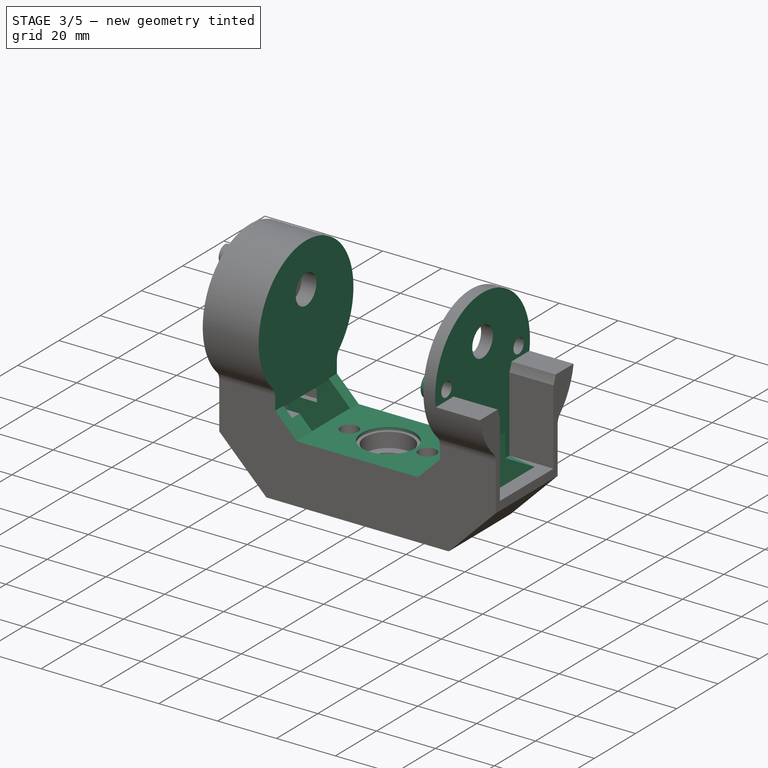
[diagram: stage 3 of 5 — iso view after this stage's code; geometry added in this stage tinted green]
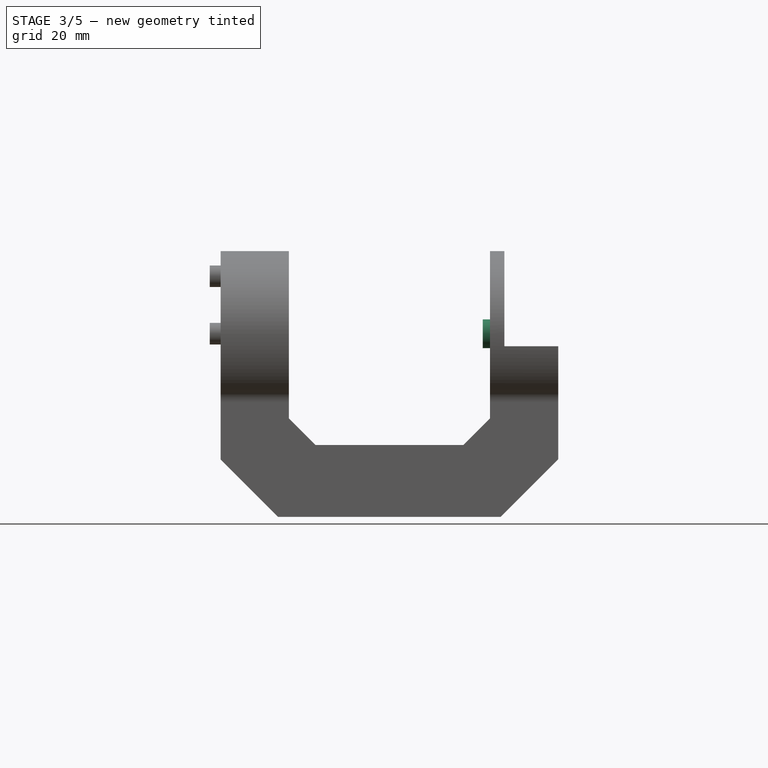
[diagram: stage 3 of 5 — front view after this stage's code; geometry added in this stage tinted green]
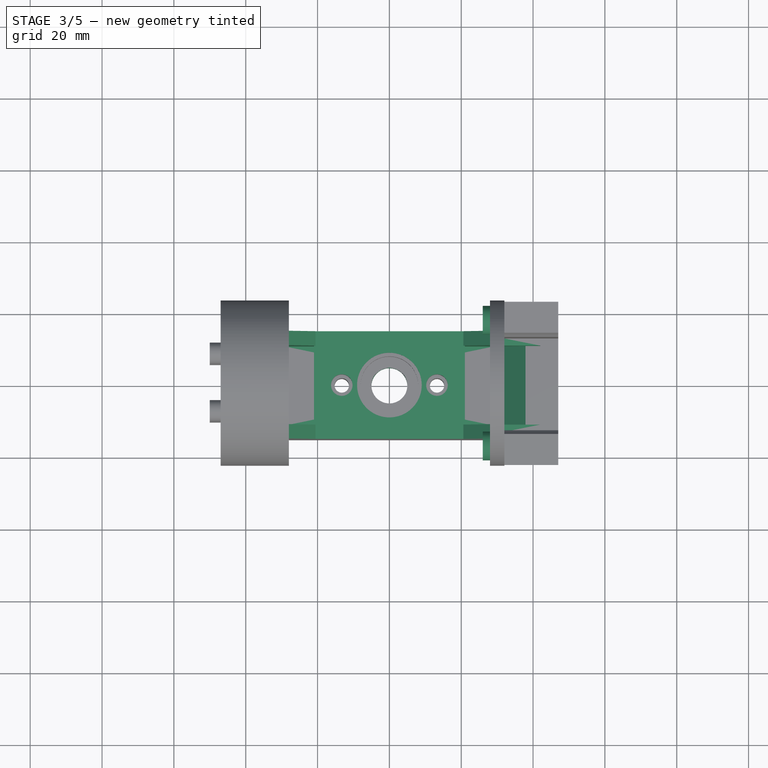
[diagram: stage 3 of 5 — top view after this stage's code; geometry added in this stage tinted green]
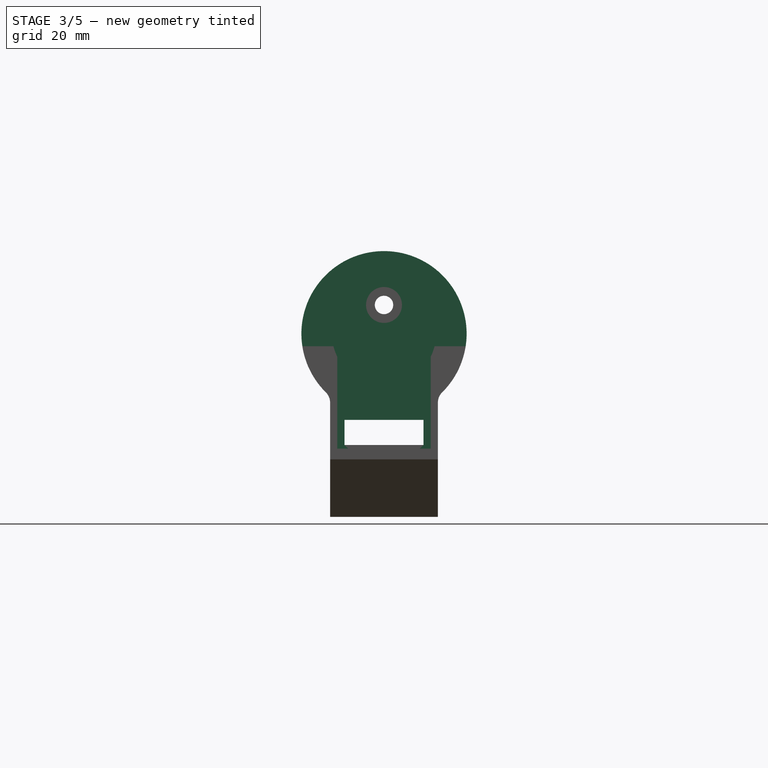
[diagram: stage 3 of 5 — right view after this stage's code; geometry added in this stage tinted green]
FEATURE [PartDesign::Chamfer] Chamfer006
  Angle = 45
  Base = -> Pocket099 [Edge195,Edge128]
  BaseFeature = -> Pocket099
  ChamferType = 0
  FlipDirection = false
  Placement = pos=(0,0,0) rot=(1,0,0;1.5708rad)
  Refine = true
  Size = 8.9
  Size2 = 1
  SupportTransform = false
  Suppressed = false
  UseAllEdges = false
FEATURE [PartDesign::Fillet] Fillet001
  Base = -> Chamfer006 [Edge154,Edge184,Edge181,Edge158]
  BaseFeature = -> Chamfer006
  Placement = pos=(0,0,0) rot=(1,0,0;1.5708rad)
  Radius = 4
  Refine = true
  SupportTransform = false
  Suppressed = false
  UseAllEdges = false
FEATURE [Sketcher::SketchObject] Sketch109
  ArcFitTolerance = 1e-06
  AttachmentSupport = -> [Fillet001]
  FullyConstrained = true
  MakeInternals = false
  MapMode = 5
  Placement = pos=(0,-2.2e-14,-40) rot=(0,0,1;3.14159rad)
  sketch-geometry (1):
    g0: Circle CenterX=0 CenterY=0 CenterZ=0 NormalX=0 NormalY=0 NormalZ=1 AngleXU=0 Radius=9
  constraints (2):
    c: Diameter(g0) = 18
    c: Coincident(g0,g-1)
FEATURE [PartDesign::Pocket] Pocket100
  BaseFeature = -> Fillet001
  Direction = (0,0,-1)
  Length = 1
  Length2 = 5
  Placement = pos=(0,0,0) rot=(1,0,0;1.5708rad)
  Profile = -> Sketch109
  ReferenceAxis = -> Sketch109 [N_Axis]
  Refine = true
  Suppressed = false
  Type = 0
FEATURE [Sketcher::SketchObject] Sketch110
  ArcFitTolerance = 1e-06
  AttachmentSupport = -> [Pocket100]
  FullyConstrained = true
  MakeInternals = false
  MapMode = 5
  Placement = pos=(0,0,-45) rot=(0,0,1;3.14159rad)
  sketch-geometry (1):
    g0: Circle CenterX=0 CenterY=0 CenterZ=0 NormalX=0 NormalY=0 NormalZ=1 AngleXU=0 Radius=5
  constraints (2):
    c: Diameter(g0) = 10
    c: Coincident(g0,g-1)
FEATURE [PartDesign::Pocket] Pocket101
  BaseFeature = -> Pocket100
  Direction = (0,0,-1)
  Length = 5
  Length2 = 5
  Placement = pos=(0,0,0) rot=(1,0,0;1.5708rad)
  Profile = -> Sketch110
  ReferenceAxis = -> Sketch110 [N_Axis]
  Refine = true
  Suppressed = false
  Type = 1
FEATURE [PartDesign::Pocket] Pocket102
  BaseFeature = -> Pocket101
  Direction = (-2e-16,0,1)
  Length = 10
  Length2 = 5
  Placement = pos=(0,0,0) rot=(1,0,0;1.5708rad)
  Profile = -> Pocket101 [Face43]
  Refine = true
  Suppressed = false
  Type = 0
FEATURE [PartDesign::Pocket] Pocket103
  BaseFeature = -> Pocket102
  Direction = (-1,0,0)
  Length = 4
  Length2 = 5
  Placement = pos=(0,0,0) rot=(1,0,0;1.5708rad)
  Profile = -> Pocket102 [Face32]
  Refine = true
  Suppressed = false
  Type = 0
FEATURE [Sketcher::SketchObject] Sketch111
  ArcFitTolerance = 1e-06
  AttachmentSupport = -> [Pocket103]
  FullyConstrained = false
  MakeInternals = false
  MapMode = 5
  Placement = pos=(47,0,0) rot=(0.707107,0,0.707107;3.14159rad)
  sketch-geometry (5):
    g0: LineSegment StartX=-12.3532 StartY=22 StartZ=0 EndX=-12.3532 EndY=-22 EndZ=0
    g1: LineSegment StartX=-12.3532 StartY=-22 StartZ=0 EndX=-3.85324 EndY=-22 EndZ=0
    g2: LineSegment StartX=-3.85324 StartY=-22 StartZ=0 EndX=-3.85324 EndY=22 EndZ=0
    g3: LineSegment StartX=-3.85324 StartY=22 StartZ=0 EndX=-12.3532 EndY=22 EndZ=0
    g4: GeomPoint [constr] X=-8.10324 Y=0 Z=0
  constraints (12):
    c: Coincident(g0,g1)
    c: Coincident(g1,g2)
    c: Coincident(g2,g3)
    c: Coincident(g3,g0)
    c: Vertical(g0)
    c: Vertical(g2)
    c: Horizontal(g1)
    c: Horizontal(g3)
    c: Symmetric(g2,g0,g4)
    c: PointOnObject(g4,g-1)
    c: DistanceY(g0,g0) = 44
    c: DistanceX(g3,g3) = 8.5
FEATURE [PartDesign::Pocket] Pocket104
  BaseFeature = -> Pocket103
  Direction = (0,1,-9e-16)
  Length = 5
  Length2 = 5
  Placement = pos=(0,0,0) rot=(1,0,0;1.5708rad)
  Profile = -> Pocket103 [Face92]
  Refine = true
  Suppressed = false
  Type = 0
FEATURE [PartDesign::Pocket] Pocket105
  BaseFeature = -> Pocket104
  Direction = (0,-1,1e-15)
  Length = 5
  Length2 = 5
  Placement = pos=(0,0,0) rot=(1,0,0;1.5708rad)
  Profile = -> Pocket104 [Face9]
  Refine = true
  Suppressed = false
  Type = 0
FEATURE [PartDesign::Pocket] Pocket106
  BaseFeature = -> Pocket105
  Direction = (-1,0,0)
  Length = 0
  Length2 = 5
  Placement = pos=(0,0,0) rot=(1,0,0;1.5708rad)
  Profile = -> Pocket105 [Face26]
  Refine = true
  Suppressed = false
  Type = 3
  UpToFace = -> Pocket105 [Face91]
FEATURE [Sketcher::SketchObject] Sketch112
  ArcFitTolerance = 1e-06
  AttachmentSupport = -> [Pocket106]
  ExternalGeometry = -> [Pocket106]
  FullyConstrained = true
  MakeInternals = false
  MapMode = 5
  Placement = pos=(29,0,0) rot=(0.707107,0,-0.707107;3.14159rad)
  sketch-geometry (2):
    g0: Circle CenterX=8 CenterY=-17.5 CenterZ=0 NormalX=0 NormalY=0 NormalZ=1 AngleXU=0 Radius=4
    g1: Circle CenterX=8 CenterY=17.5 CenterZ=0 NormalX=0 NormalY=0 NormalZ=1 AngleXU=0 Radius=4
  constraints (4):
    c: Diameter(g0) = 8
    c: Coincident(g0,g-4)
    c: Diameter(g1) = 8
    c: Coincident(g1,g-3)
FEATURE [PartDesign::Pad] Pad042
  BaseFeature = -> Pocket106
  Direction = (-1,0,-2e-16)
  Length = 3
  Length2 = 10
  Placement = pos=(0,0,0) rot=(1,0,0;1.5708rad)
  Profile = -> Sketch112
  ReferenceAxis = -> Sketch112 [N_Axis]
  Refine = true
  Suppressed = false
  Type = 0
FEATURE [PartDesign::Pocket] Pocket107
  BaseFeature = -> Pad042
  Direction = (-1,0,0)
  Length = 3
  Length2 = 5
  Placement = pos=(0,0,0) rot=(1,0,0;1.5708rad)
  Profile = -> Pad042 [Face85,Face84]
  Refine = true
  Suppressed = false
  Type = 0
FEATURE [PartDesign::Pocket] Pocket108
  BaseFeature = -> Pocket107
  Direction = (-6.7e-15,1,-3.32e-14)
  Length = 3
  Length2 = 5
  Placement = pos=(0,0,0) rot=(1,0,0;1.5708rad)
  Profile = -> Pocket107 [Face30]
  Refine = true
  Suppressed = false
  Type = 0
FEATURE [PartDesign::Pocket] Pocket109
  BaseFeature = -> Pocket108
  Direction = (-9.4e-15,-1,-5.25e-14)
  Length = 3
  Length2 = 5
  Placement = pos=(0,0,0) rot=(1,0,0;1.5708rad)
  Profile = -> Pocket108 [Face10]
  Refine = true
  Suppressed = false
  Type = 0
FEATURE [PartDesign::Pad] Pad043
  BaseFeature = -> Pocket109
  Direction = (-1,0,0)
  Length = 1
  Length2 = 10
  Placement = pos=(0,0,0) rot=(1,0,0;1.5708rad)
  Profile = -> Pocket109 [Face21]
  Refine = true
  Suppressed = false
  Type = 0
FEATURE [PartDesign::Pad] Pad044
  BaseFeature = -> Pad043
  Direction = (1,0,0)
  Length = 1
  Length2 = 10
  Placement = pos=(0,0,0) rot=(1,0,0;1.5708rad)
  Profile = -> Pad043 [Face44]
  Refine = true
  Suppressed = false
  Type = 0
FEATURE [PartDesign::Pad] Pad045
  BaseFeature = -> Pad044
  Direction = (0.707107,4e-16,0.707107)
  Length = 1
  Length2 = 10
  Placement = pos=(0,0,0) rot=(1,0,0;1.5708rad)
  Profile = -> Pad044 [Face29,Face37]
  Refine = true
  Suppressed = false
  Type = 0
FEATURE [PartDesign::Pad] Pad046
  BaseFeature = -> Pad045
  Direction = (-0.707107,5e-16,0.707107)
  Length = 1
  Length2 = 10
  Placement = pos=(0,0,0) rot=(1,0,0;1.5708rad)
  Profile = -> Pad045 [Face34,Face6]
  Refine = true
  Suppressed = false
  Type = 0
FEATURE [PartDesign::Pad] Pad047
  BaseFeature = -> Pad046
  Direction = (0,5e-16,1)
  Length = 1
  Length2 = 10
  Placement = pos=(0,0,0) rot=(1,0,0;1.5708rad)
  Profile = -> Pad046 [Face38]
  Refine = true
  Suppressed = false
  Type = 0
FEATURE [PartDesign::Pad] Pad048
  BaseFeature = -> Pad047
  Direction = (0,0,1)
  Length = 1
  Length2 = 10
  Placement = pos=(0,0,0) rot=(1,0,0;1.5708rad)
  Profile = -> Pad047 [Face1]
  Refine = true
  Suppressed = false
  Type = 0
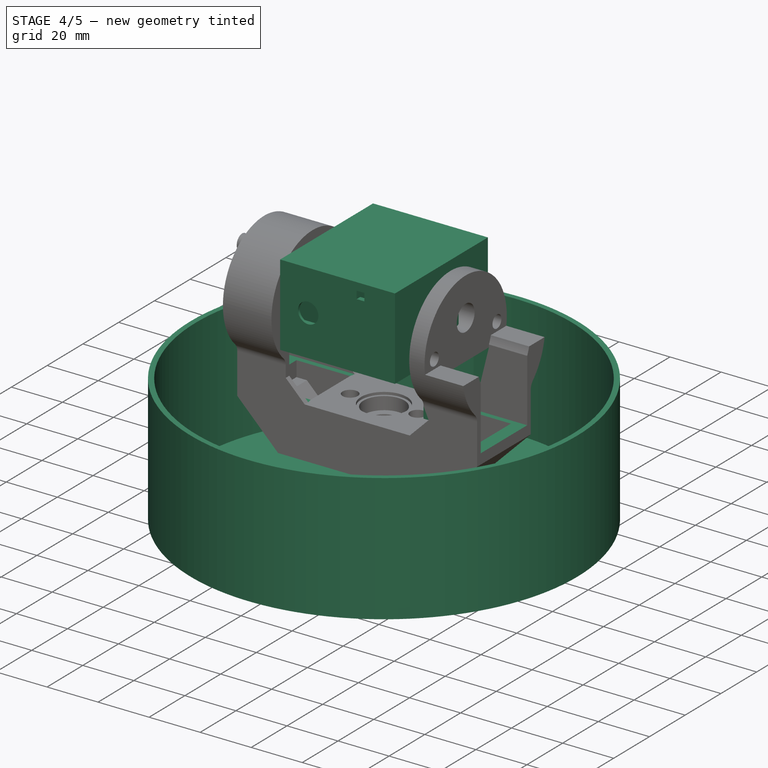
[diagram: stage 4 of 5 — iso view after this stage's code; geometry added in this stage tinted green]
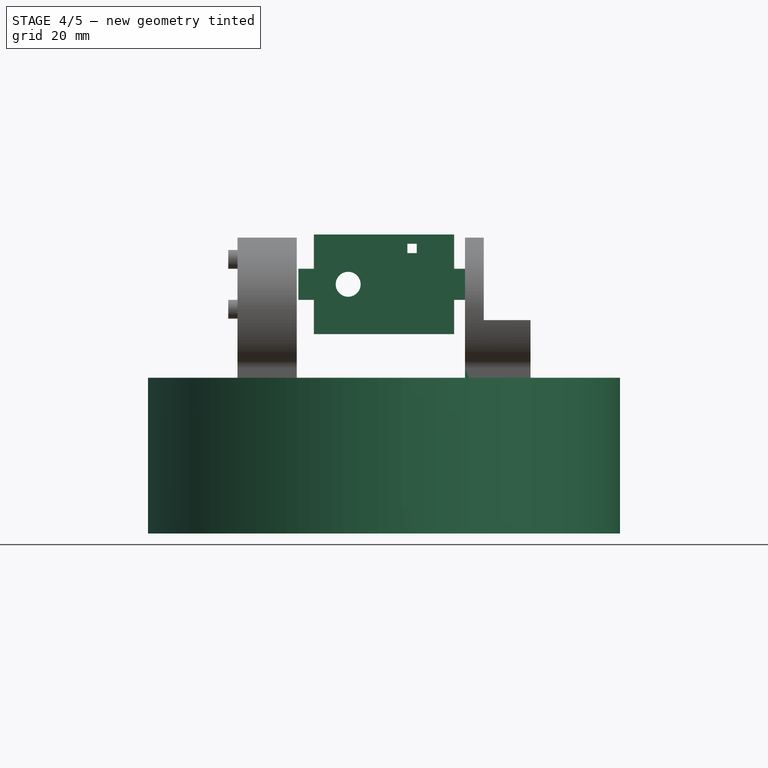
[diagram: stage 4 of 5 — front view after this stage's code; geometry added in this stage tinted green]
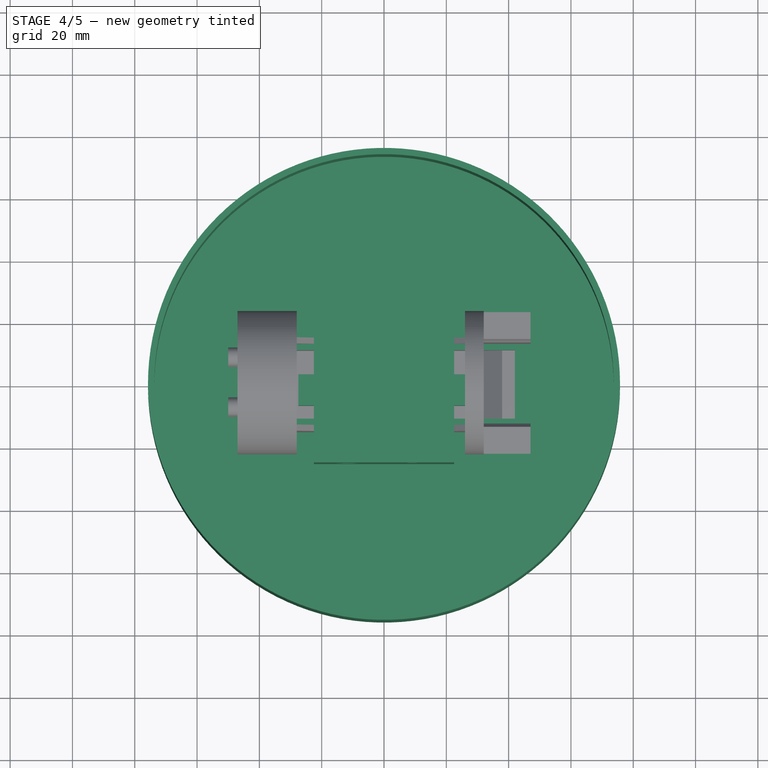
[diagram: stage 4 of 5 — top view after this stage's code; geometry added in this stage tinted green]
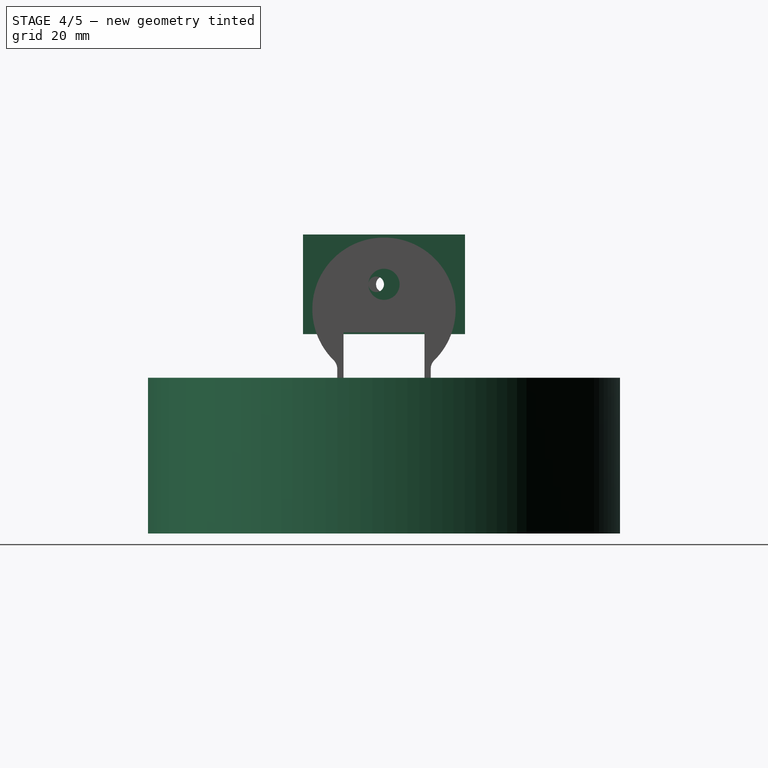
[diagram: stage 4 of 5 — right view after this stage's code; geometry added in this stage tinted green]
FEATURE [Spreadsheet::Sheet] Spreadsheet  label="Params"
  cells = A1='Body_Width; B1(Body_Width)==45 mm; A2='Body_Length; B2(Body_Length)==52 mm; A3='Body_Height; B3(Body_Height)==32 mm; A4='Lens_Dia; B4(Lens_Dia)==8 mm; A5='Lens_YOffset; B5(Lens_YOffset)==11.5 mm; A6='LED_Width; B6(LED_Width)==3 mm; A7='LED_Height; B7(LED_Height)==3 mm; A8='LED_XOffset; B8(LED_XOffset)==13 mm; A9='LED_YOffset; B9(LED_YOffset)==7.5 mm; A10='CF_Width; B10(CF_Width)==2 mm; A11='CF_Length; B11(CF_Length)==15 mm
FEATURE [Sketcher::SketchObject] Sketch  label="Main Body Sketch"
  ArcFitTolerance = 1e-06
  AttachmentSupport = -> [XY_Plane]
  FullyConstrained = true
  MakeInternals = false
  MapMode = 5
  expr: Constraints[10] = <<Params>>.Body_Width
  expr: Constraints[11] = <<Params>>.Body_Length
  sketch-geometry (5):
    g0: LineSegment StartX=-22.5 StartY=26 StartZ=0 EndX=-22.5 EndY=-26 EndZ=0
    g1: LineSegment StartX=-22.5 StartY=-26 StartZ=0 EndX=22.5 EndY=-26 EndZ=0
    g2: LineSegment StartX=22.5 StartY=-26 StartZ=0 EndX=22.5 EndY=26 EndZ=0
    g3: LineSegment StartX=22.5 StartY=26 StartZ=0 EndX=-22.5 EndY=26 EndZ=0
    g4: GeomPoint [constr] X=0 Y=0 Z=0
  constraints (12):
    c: Coincident(g0,g1)
    c: Coincident(g1,g2)
    c: Coincident(g2,g3)
    c: Coincident(g3,g0)
    c: Vertical(g0)
    c: Vertical(g2)
    c: Horizontal(g1)
    c: Horizontal(g3)
    c: Symmetric(g2,g0,g4)
    c: Coincident(g4,g-1)
    c: DistanceX(g3,g3) = 45
    c: DistanceY(g0,g0) = 52
FEATURE [PartDesign::Pad] Pad  label="Main Body"
  Direction = (0,0,1)
  Length = 32
  Length2 = 10
  Midplane = true
  Profile = -> Sketch
  ReferenceAxis = -> Sketch [N_Axis]
  Refine = true
  Suppressed = false
  Type = 0
  expr: Length = <<Params>>.Body_Height
FEATURE [PartDesign::Thickness] Thickness
  Base = -> Pad [Face4]
  BaseFeature = -> Pad
  Intersection = false
  Join = 0
  Mode = 0
  Refine = true
  Reversed = true
  SupportTransform = false
  Suppressed = false
  Value = 2
FEATURE [PartDesign::Plane] DatumPlane
  AttachmentOffset = pos=(0,0,2) rot=(0,0,1;0rad)
  AttachmentSupport = -> [Thickness]
  Length = 65.4923
  MapMode = 5
  Placement = pos=(0,-28,4e-16) rot=(1,0,0;1.5708rad)
  ResizeMode = 0
  Width = 60.5323
FEATURE [Sketcher::SketchObject] Sketch001
  ArcFitTolerance = 1e-06
  AttachmentSupport = -> [DatumPlane]
  FullyConstrained = true
  MakeInternals = false
  MapMode = 5
  Placement = pos=(0,-28,4e-16) rot=(1,0,0;1.5708rad)
  expr: Constraints[10] = <<Params>>.Lens_Dia
  expr: Constraints[11] = <<Params>>.Lens_YOffset
  expr: Constraints[12] = <<Params>>.LED_YOffset
  expr: Constraints[13] = <<Params>>.LED_XOffset
  expr: Constraints[14] = <<Params>>.LED_Height
  expr: Constraints[15] = <<Params>>.LED_Width
  sketch-geometry (6):
    g0: Circle CenterX=-11.5 CenterY=0 CenterZ=0 NormalX=0 NormalY=0 NormalZ=1 AngleXU=0 Radius=4
    g1: LineSegment StartX=7.5 StartY=13 StartZ=0 EndX=7.5 EndY=10 EndZ=0
    g2: LineSegment StartX=7.5 StartY=10 StartZ=0 EndX=10.5 EndY=10 EndZ=0
    g3: LineSegment StartX=10.5 StartY=10 StartZ=0 EndX=10.5 EndY=13 EndZ=0
    g4: LineSegment StartX=10.5 StartY=13 StartZ=0 EndX=7.5 EndY=13 EndZ=0
    g5: GeomPoint [constr] X=9 Y=11.5 Z=0
  constraints (16):
    c: PointOnObject(g0,g-1)
    c: Coincident(g1,g2)
    c: Coincident(g2,g3)
    c: Coincident(g3,g4)
    c: Coincident(g4,g1)
    c: Vertical(g1)
    c: Vertical(g3)
    c: Horizontal(g2)
    c: Horizontal(g4)
    c: Symmetric(g3,g1,g5)
    c: Diameter(g0) = 8
    c: DistanceX(g0,g-1) = 11.5
    c: Distance(g-2,g1) = 7.5
    c: Distance(g4,g-1) = 13
    c: DistanceY(g3,g3) = 3
    c: DistanceX(g2,g2) = 3
FEATURE [PartDesign::Pocket] Pocket  label="Lens Cutout"
  BaseFeature = -> Thickness
  Direction = (0,1,-2e-16)
  Length = 5
  Length2 = 5
  Profile = -> Sketch001
  ReferenceAxis = -> Sketch001 [N_Axis]
  Refine = true
  Suppressed = false
  Type = 1
FEATURE [PartDesign::Plane] DatumPlane001
  AttachmentOffset = pos=(0,0,2) rot=(0,0,1;0rad)
  AttachmentSupport = -> [Pocket]
  Length = 65.4923
  MapMode = 5
  Placement = pos=(0,-22,-4e-16) rot=(0,0.707107,0.707107;3.14159rad)
  ResizeMode = 0
  Width = 60.5323
FEATURE [Sketcher::SketchObject] Sketch002
  ArcFitTolerance = 1e-06
  AttachmentSupport = -> [DatumPlane001]
  FullyConstrained = true
  MakeInternals = false
  MapMode = 5
  Placement = pos=(0,-22,-4e-16) rot=(0,0.707107,0.707107;3.14159rad)
  expr: Constraints[10] = <<Params>>.Lens_Dia
  expr: Constraints[11] = <<Params>>.Lens_Dia
  expr: Constraints[12] = <<Params>>.Lens_YOffset
  sketch-geometry (5):
    g0: LineSegment StartX=7.5 StartY=4 StartZ=0 EndX=7.5 EndY=-4 EndZ=0
    g1: LineSegment StartX=7.5 StartY=-4 StartZ=0 EndX=15.5 EndY=-4 EndZ=0
    g2: LineSegment StartX=15.5 StartY=-4 StartZ=0 EndX=15.5 EndY=4 EndZ=0
    g3: LineSegment StartX=15.5 StartY=4 StartZ=0 EndX=7.5 EndY=4 EndZ=0
    g4: GeomPoint [constr] X=11.5 Y=0 Z=0
  constraints (13):
    c: Coincident(g0,g1)
    c: Coincident(g1,g2)
    c: Coincident(g2,g3)
    c: Coincident(g3,g0)
    c: Vertical(g0)
    c: Vertical(g2)
    c: Horizontal(g1)
    c: Horizontal(g3)
    c: Symmetric(g2,g0,g4)
    c: PointOnObject(g4,g-1)
    c: DistanceX(g3,g3) = 8
    c: DistanceY(g0,g0) = 8
    c: DistanceX(g-1,g4) = 11.5
FEATURE [PartDesign::Pocket] Pocket001  label="Lens Square Recess"
  BaseFeature = -> Pocket
  Direction = (0,-1,2e-16)
  Length = 3
  Length2 = 5
  Profile = -> Sketch002
  ReferenceAxis = -> Sketch002 [N_Axis]
  Refine = true
  Suppressed = false
  Type = 0
FEATURE [PartDesign::Plane] DatumPlane002
  AttachmentSupport = -> [Pocket001]
  Length = 62.2021
  MapMode = 5
  Placement = pos=(20.5,0,0) rot=(0.57735,-0.57735,-0.57735;2.0944rad)
  ResizeMode = 0
  Width = 60.2421
FEATURE [Sketcher::SketchObject] Sketch003
  ArcFitTolerance = 1e-06
  AttachmentSupport = -> [DatumPlane002]
  FullyConstrained = true
  MakeInternals = false
  MapMode = 5
  Placement = pos=(20.5,0,0) rot=(0.57735,-0.57735,-0.57735;2.0944rad)
  expr: Constraints[10] = <<Params>>.Body_Height - 4 mm
  expr: Constraints[12] = <<Params>>.Body_Width / 2 - 1 mm
  sketch-geometry (13):
    g0: LineSegment StartX=19 StartY=14 StartZ=0 EndX=19 EndY=-14 EndZ=0
    g1: LineSegment StartX=19 StartY=-14 StartZ=0 EndX=24 EndY=-14 EndZ=0
    g2: LineSegment StartX=24 StartY=-14 StartZ=0 EndX=24 EndY=14 EndZ=0
    g3: LineSegment StartX=24 StartY=14 StartZ=0 EndX=19 EndY=14 EndZ=0
    g4: GeomPoint [constr] X=21.5 Y=0 Z=0
    g5: LineSegment StartX=7 StartY=14 StartZ=0 EndX=7 EndY=9 EndZ=0
    g6: LineSegment StartX=7 StartY=9 StartZ=0 EndX=17 EndY=9 EndZ=0
    g7: LineSegment StartX=17 StartY=9 StartZ=0 EndX=17 EndY=14 EndZ=0
    g8: LineSegment StartX=17 StartY=14 StartZ=0 EndX=7 EndY=14 EndZ=0
    g9: LineSegment StartX=7 StartY=-9 StartZ=0 EndX=7 EndY=-14 EndZ=0
    g10: LineSegment StartX=7 StartY=-14 StartZ=0 EndX=17 EndY=-14 EndZ=0
    g11: LineSegment StartX=17 StartY=-14 StartZ=0 EndX=17 EndY=-9 EndZ=0
    g12: LineSegment StartX=17 StartY=-9 StartZ=0 EndX=7 EndY=-9 EndZ=0
  constraints (37):
    c: Coincident(g0,g1)
    c: Coincident(g1,g2)
    c: Coincident(g2,g3)
    c: Coincident(g3,g0)
    c: Vertical(g0)
    c: Vertical(g2)
    c: Horizontal(g1)
    c: Horizontal(g3)
    c: Symmetric(g2,g0,g4)
    c: PointOnObject(g4,g-1)
    c: DistanceY(g0,g0) = 28
    c: DistanceX(g3,g3) = 5
    c: DistanceX(g-1,g4) = 21.5
    c: Coincident(g5,g6)
    c: Coincident(g6,g7)
    c: Coincident(g7,g8)
    c: Coincident(g8,g5)
    c: Vertical(g5)
    c: Vertical(g7)
    c: Horizontal(g6)
    c: Horizontal(g8)
    c: DistanceY(g7,g7) = 5
    c: DistanceX(g8,g8) = 10
    c: Distance(g0,g7) = 2
    c: Distance(g-1,g8) = 14
    c: Coincident(g9,g10)
    c: Coincident(g10,g11)
    c: Coincident(g11,g12)
    c: Coincident(g12,g9)
    c: Vertical(g9)
    c: Vertical(g11)
    c: Horizontal(g10)
    c: Horizontal(g12)
    c: DistanceX(g12,g12) = 10
    c: DistanceY(g9,g9) = 5
    c: Distance(g0,g11) = 2
    c: Distance(g-1,g10) = 14
FEATURE [PartDesign::Pad] Pad001  label="Bottom Riser"
  BaseFeature = -> Pocket001
  Direction = (-1,0,0)
  Length = 5
  Length2 = 10
  Profile = -> Sketch003
  ReferenceAxis = -> Sketch003 [N_Axis]
  Refine = true
  Suppressed = false
  Type = 0
FEATURE [PartDesign::Plane] DatumPlane003
  AttachmentSupport = -> [Pad001]
  Length = 65.4923
  MapMode = 5
  Placement = pos=(0,-24,0) rot=(0,0.707107,0.707107;3.14159rad)
  ResizeMode = 0
  Width = 60.5323
FEATURE [Sketcher::SketchObject] Sketch004
  ArcFitTolerance = 1e-06
  AttachmentSupport = -> [DatumPlane003]
  FullyConstrained = true
  MakeInternals = false
  MapMode = 5
  Placement = pos=(0,-24,0) rot=(0,0.707107,0.707107;3.14159rad)
  sketch-geometry (8):
    g0: LineSegment StartX=18 StartY=14 StartZ=0 EndX=18 EndY=11 EndZ=0
    g1: LineSegment StartX=18 StartY=11 StartZ=0 EndX=21 EndY=11 EndZ=0
    g2: LineSegment StartX=21 StartY=11 StartZ=0 EndX=21 EndY=14 EndZ=0
    g3: LineSegment StartX=21 StartY=14 StartZ=0 EndX=18 EndY=14 EndZ=0
    g4: LineSegment StartX=18 StartY=-11 StartZ=0 EndX=18 EndY=-14 EndZ=0
    g5: LineSegment StartX=18 StartY=-14 StartZ=0 EndX=21 EndY=-14 EndZ=0
    g6: LineSegment StartX=21 StartY=-14 StartZ=0 EndX=21 EndY=-11 EndZ=0
    g7: LineSegment StartX=21 StartY=-11 StartZ=0 EndX=18 EndY=-11 EndZ=0
  constraints (24):
    c: Coincident(g0,g1)
    c: Coincident(g1,g2)
    c: Coincident(g2,g3)
    c: Coincident(g3,g0)
    c: Vertical(g0)
    c: Vertical(g2)
    c: Horizontal(g1)
    c: Horizontal(g3)
    c: Coincident(g4,g5)
    c: Coincident(g5,g6)
    c: Coincident(g6,g7)
    c: Coincident(g7,g4)
    c: Vertical(g4)
    c: Vertical(g6)
    c: Horizontal(g5)
    c: Horizontal(g7)
    c: DistanceY(g4,g4) = 3
    c: DistanceX(g7,g7) = 3
    c: DistanceY(g0,g0) = 3
    c: DistanceX(g1,g1) = 3
    c: Distance(g-1,g3) = 14
    c: Distance(g5,g-1) = 14
    c: Distance(g-2,g4) = 18
    c: Distance(g-2,g0) = 18
FEATURE [PartDesign::Pad] Pad002  label="Bottom Back Support"
  BaseFeature = -> Pad001
  Direction = (0,1,-2e-16)
  Length = 5.5
  Length2 = 10
  Profile = -> Sketch004
  ReferenceAxis = -> Sketch004 [N_Axis]
  Refine = true
  Suppressed = false
  Type = 0
FEATURE [PartDesign::Plane] DatumPlane004
  AttachmentOffset = pos=(0,0,-5) rot=(0,0,1;0rad)
  AttachmentSupport = -> [Pad002]
  Length = 65.6958
  MapMode = 5
  Placement = pos=(0,0,14) rot=(1,0,0;3.14159rad)
  ResizeMode = 0
  Width = 62.6958
FEATURE [Sketcher::SketchObject] Sketch005
  ArcFitTolerance = 1e-06
  AttachmentSupport = -> [DatumPlane004]
  FullyConstrained = true
  MakeInternals = false
  MapMode = 5
  Placement = pos=(0,0,14) rot=(1,0,0;3.14159rad)
  sketch-geometry (3):
    g0: LineSegment StartX=18.5 StartY=17 StartZ=0 EndX=15.5 EndY=14 EndZ=0
    g1: LineSegment StartX=15.5 StartY=14 StartZ=0 EndX=15.5 EndY=17 EndZ=0
    g2: LineSegment StartX=15.5 StartY=17 StartZ=0 EndX=18.5 EndY=17 EndZ=0
  constraints (9):
    c: Coincident(g0,g1)
    c: Vertical(g1)
    c: Coincident(g1,g2)
    c: Coincident(g2,g0)
    c: Horizontal(g2)
    c: Distance(g-2,g1) = 15.5
    c: Distance(g-1,g2) = 17
    c: DistanceX(g2,g2) = 3
    c: DistanceY(g1,g1) = 3
FEATURE [PartDesign::Pocket] Pocket002  label="Back Support Chamfer"
  BaseFeature = -> Pad002
  Direction = (0,0,1)
  Length = 0
  Length2 = 5
  Profile = -> Sketch005
  ReferenceAxis = -> Sketch005 [N_Axis]
  Refine = true
  Reversed = true
  Suppressed = false
  Type = 3
  UpToFace = -> Pad002 [Face8]
FEATURE [PartDesign::Plane] DatumPlane005
  AttachmentOffset = pos=(0,0,2) rot=(0,0,1;0rad)
  AttachmentSupport = -> [Pocket002]
  Length = 62.2021
  MapMode = 5
  Placement = pos=(-24.5,0,0) rot=(0.57735,-0.57735,-0.57735;2.0944rad)
  ResizeMode = 0
  Width = 60.2421
FEATURE [Sketcher::SketchObject] Sketch006
  ArcFitTolerance = 1e-06
  AttachmentSupport = -> [DatumPlane005]
  FullyConstrained = true
  MakeInternals = false
  MapMode = 5
  Placement = pos=(-24.5,0,0) rot=(0.57735,-0.57735,-0.57735;2.0944rad)
  expr: Constraints[10] = <<Params>>.CF_Width
  expr: Constraints[11] = <<Params>>.CF_Length
  expr: Constraints[12] = <<Params>>.Body_Width / 2 - 4.5 mm
  sketch-geometry (5):
    g0: LineSegment StartX=18 StartY=7.5 StartZ=0 EndX=18 EndY=-7.5 EndZ=0
    g1: LineSegment StartX=18 StartY=-7.5 StartZ=0 EndX=20 EndY=-7.5 EndZ=0
    g2: LineSegment StartX=20 StartY=-7.5 StartZ=0 EndX=20 EndY=7.5 EndZ=0
    g3: LineSegment StartX=20 StartY=7.5 StartZ=0 EndX=18 EndY=7.5 EndZ=0
    g4: GeomPoint [constr] X=19 Y=0 Z=0
  constraints (13):
    c: Coincident(g0,g1)
    c: Coincident(g1,g2)
    c: Coincident(g2,g3)
    c: Coincident(g3,g0)
    c: Vertical(g0)
    c: Vertical(g2)
    c: Horizontal(g1)
    c: Horizontal(g3)
    c: Symmetric(g2,g0,g4)
    c: PointOnObject(g4,g-1)
    c: DistanceX(g3,g3) = 2
    c: DistanceY(g0,g0) = 15
    c: Distance(g-1,g0) = 18
FEATURE [PartDesign::Pocket] Pocket003  label="CF Slot"
  BaseFeature = -> Pocket002
  Direction = (1,0,0)
  Length = 5
  Length2 = 5
  Profile = -> Sketch006
  ReferenceAxis = -> Sketch006 [N_Axis]
  Refine = true
  Suppressed = false
  Type = 0
FEATURE [PartDesign::SubtractiveSphere] Sphere
  Angle1 = -90
  Angle2 = 90
  Angle3 = 360
  AttacherType = Attacher::AttachEngine3D
  AttachmentOffset = pos=(19,0,9.5) rot=(0,0,1;0rad)
  AttachmentSupport = -> [Pocket003]
  BaseFeature = -> Pocket003
  MapMode = 5
  Placement = pos=(-32,-19,0) rot=(0.57735,-0.57735,-0.57735;2.0944rad)
  Radius = 11
  Refine = true
  Suppressed = false
FEATURE [PartDesign::Plane] DatumPlane006
  AttachmentOffset = pos=(0,0,2) rot=(0,0,1;0rad)
  AttachmentSupport = -> [Sphere]
  Length = 62.2021
  MapMode = 5
  Placement = pos=(-24.5,-19,0) rot=(0.57735,-0.57735,-0.57735;2.0944rad)
  ResizeMode = 0
  Width = 60.2421
FEATURE [Sketcher::SketchObject] Sketch007
  ArcFitTolerance = 1e-06
  AttachmentSupport = -> [DatumPlane006]
  FullyConstrained = true
  MakeInternals = false
  MapMode = 5
  Placement = pos=(-24.5,-19,0) rot=(0.57735,-0.57735,-0.57735;2.0944rad)
  sketch-geometry (1):
    g0: Circle CenterX=-3.5 CenterY=11.5 CenterZ=0 NormalX=0 NormalY=0 NormalZ=1 AngleXU=0 Radius=2
  constraints (3):
    c: Distance(g0,g-2) = 3.5
    c: Distance(g0,g-1) = 11.5
    c: Diameter(g0) = 4
FEATURE [PartDesign::Hole] Hole  label="Board lock threaded hole"
  BaseFeature = -> Sphere
  CustomThreadClearance = 0
  Depth = 25
  DepthType = 0
  Diameter = 2.52
  DrillForDepth = false
  DrillPoint = 1
  DrillPointAngle = 118
  HoleCutCountersinkAngle = 90
  HoleCutCustomValues = false
  HoleCutDepth = 0
  HoleCutDiameter = 6.1
  HoleCutType = 0
  ModelThread = true
  Placement = pos=(-32,-19,0) rot=(0.57735,-0.57735,-0.57735;2.0944rad)
  Profile = -> Sketch007
  Refine = true
  Suppressed = false
  Tapered = false
  TaperedAngle = 90
  ThreadClass = 0
  ThreadDepth = 25
  ThreadDepthType = 0
  ThreadDirection = 0
  ThreadFit = 0
  ThreadSize = 9
  ThreadType = 1
  Threaded = true
  UseCustomThreadClearance = false
FEATURE [PartDesign::Mirrored] Mirrored
  BaseFeature = -> Hole
  MirrorPlane = -> Sketch007 [H_Axis]
  Originals = -> [Hole]
  Placement = pos=(-32,-19,0) rot=(0.57735,-0.57735,-0.57735;2.0944rad)
  Refine = true
  Suppressed = false
  TransformMode = 0
FEATURE [PartDesign::Plane] DatumPlane007
  AttachmentSupport = -> [Mirrored]
  Length = 62.2021
  MapMode = 5
  Placement = pos=(-22.5,-19,0) rot=(0.57735,-0.57735,-0.57735;2.0944rad)
  ResizeMode = 0
  Width = 60.2421
FEATURE [Sketcher::SketchObject] Sketch008
  ArcFitTolerance = 1e-06
  AttachmentSupport = -> [DatumPlane007]
  FullyConstrained = true
  MakeInternals = false
  MapMode = 5
  Placement = pos=(-22.5,-19,0) rot=(0.57735,-0.57735,-0.57735;2.0944rad)
  expr: Constraints[12] = <<Params>>.Body_Width / 2 - 6 mm
  sketch-geometry (5):
    g0: LineSegment StartX=-21.5 StartY=-5 StartZ=0 EndX=-11.5 EndY=-5 EndZ=0
    g1: LineSegment StartX=-11.5 StartY=-5 StartZ=0 EndX=-11.5 EndY=5 EndZ=0
    g2: LineSegment StartX=-11.5 StartY=5 StartZ=0 EndX=-21.5 EndY=5 EndZ=0
    g3: LineSegment StartX=-21.5 StartY=5 StartZ=0 EndX=-21.5 EndY=-5 EndZ=0
    g4: GeomPoint [constr] X=-16.5 Y=0 Z=0
  constraints (13):
    c: Coincident(g0,g1)
    c: Coincident(g1,g2)
    c: Coincident(g2,g3)
    c: Coincident(g3,g0)
    c: Horizontal(g0)
    c: Horizontal(g2)
    c: Vertical(g1)
    c: Vertical(g3)
    c: Symmetric(g2,g0,g4)
    c: Distance(g1,g3) = 10
    c: Distance(g0,g2) = 10
    c: PointOnObject(g4,g-1)
    c: Distance(g-1,g4) = 16.5
FEATURE [PartDesign::Pad] Pad003  label="Shaft Pad L"
  BaseFeature = -> Mirrored
  Direction = (-1,0,0)
  Length = 5
  Length2 = 10
  Placement = pos=(-32,-19,0) rot=(0.57735,-0.57735,-0.57735;2.0944rad)
  Profile = -> Sketch008
  ReferenceAxis = -> Sketch008 [N_Axis]
  Refine = true
  Suppressed = false
  Type = 0
FEATURE [PartDesign::Mirrored] Mirrored001  label="Shaft Pad R"
  BaseFeature = -> Pad003
  MirrorPlane = -> YZ_Plane
  Originals = -> [Pad003]
  Placement = pos=(-32,-19,0) rot=(0.57735,-0.57735,-0.57735;2.0944rad)
  Refine = true
  Suppressed = false
  TransformMode = 0
FEATURE [PartDesign::Plane] DatumPlane008
  AttachmentOffset = pos=(0,0,2) rot=(0,0,1;0rad)
  AttachmentSupport = -> [Mirrored001]
  Length = 62.2021
  MapMode = 5
  Placement = pos=(29.5,-19,0) rot=(0.57735,-0.57735,0.57735;4.18879rad)
  ResizeMode = 0
  Width = 60.2421
FEATURE [Sketcher::SketchObject] Sketch009
  ArcFitTolerance = 1e-06
  AttachmentSupport = -> [DatumPlane008]
  FullyConstrained = true
  MakeInternals = false
  MapMode = 5
  Placement = pos=(29.5,-19,0) rot=(0.57735,-0.57735,0.57735;4.18879rad)
  sketch-geometry (1):
    g0: Circle CenterX=-16.5 CenterY=0 CenterZ=0 NormalX=0 NormalY=0 NormalZ=1 AngleXU=0 Radius=2.5
  constraints (3):
    c: Diameter(g0) = 5
    c: PointOnObject(g0,g-1)
    c: DistanceX(g0,g-1) = 16.5
FEATURE [PartDesign::Pocket] Pocket004
  BaseFeature = -> Mirrored001
  Direction = (-1,0,0)
  Length = 5
  Length2 = 5
  Placement = pos=(-32,-19,0) rot=(0.57735,-0.57735,-0.57735;2.0944rad)
  Profile = -> Sketch009
  ReferenceAxis = -> Sketch009 [N_Axis]
  Refine = true
  Suppressed = false
  Type = 1
FEATURE [PartDesign::Body] Body004  label="Body"
  AllowCompound = false
  Origin = -> Origin004
FEATURE [PartDesign::Pocket] Pocket110
  BaseFeature = -> Pad048
  Direction = (1,0,0)
  Length = 5
  Length2 = 5
  Placement = pos=(0,0,0) rot=(1,0,0;1.5708rad)
  Profile = -> Pad048 [Face47]
  Refine = true
  Suppressed = false
  Type = 1
FEATURE [PartDesign::Pad] Pad049
  BaseFeature = -> Pocket110
  Direction = (0,-2e-16,1)
  Length = 10
  Length2 = 10
  Placement = pos=(0,0,0) rot=(1,0,0;1.5708rad)
  Profile = -> Pocket110 [Face92]
  Refine = true
  Suppressed = false
  Type = 3
  UpToFace = -> Pocket110 [Face38]
FEATURE [Sketcher::SketchObject] Sketch113
  ArcFitTolerance = 1e-06
  AttachmentOffset = pos=(0,0,-30) rot=(0,0,1;0rad)
  AttachmentSupport = -> [XY_Plane007]
  FullyConstrained = true
  MakeInternals = false
  MapMode = 5
  Placement = pos=(0,0,-30) rot=(0,0,1;0rad)
  sketch-geometry (1):
    g0: Circle CenterX=0 CenterY=0 CenterZ=0 NormalX=0 NormalY=0 NormalZ=1 AngleXU=0 Radius=75.75
  constraints (2):
    c: Coincident(g0,g-1)
    c: Diameter(g0) = 151.5
FEATURE [PartDesign::Pad] Pad051
  Direction = (0,0,1)
  Length = 50
  Length2 = 10
  Profile = -> Sketch113
  ReferenceAxis = -> Sketch113 [N_Axis]
  Refine = true
  Reversed = true
  Suppressed = false
  Type = 0
FEATURE [PartDesign::Thickness] Thickness001
  Base = -> Pad051 [Face2]
  BaseFeature = -> Pad051
  Intersection = false
  Join = 0
  Mode = 0
  Refine = true
  Reversed = true
  SupportTransform = false
  Suppressed = false
  Value = 2
FEATURE [Sketcher::SketchObject] Sketch114
  ArcFitTolerance = 1e-06
  AttachmentSupport = -> [Thickness001]
  FullyConstrained = true
  MakeInternals = false
  MapMode = 5
  Placement = pos=(0,0,-78) rot=(0,0,1;0rad)
  sketch-geometry (1):
    g0: Circle CenterX=0 CenterY=0 CenterZ=0 NormalX=0 NormalY=0 NormalZ=1 AngleXU=0 Radius=8
  constraints (2):
    c: Coincident(g0,g-1)
    c: Diameter(g0) = 16
FEATURE [PartDesign::Pocket] Pocket112
  BaseFeature = -> Thickness001
  Direction = (0,0,-1)
  Length = 5
  Length2 = 5
  Profile = -> Sketch114
  ReferenceAxis = -> Sketch114 [N_Axis]
  Refine = true
  Suppressed = false
  Type = 1
FEATURE [PartDesign::Body] Body007  label="Base"
  AllowCompound = false
  Group = -> [Sketch113,Pad051,Thickness001,Sketch114,Pocket112]
  Origin = -> Origin007
  Placement = pos=(0,0,5.75) rot=(0,0,1;0rad)
  Tip = -> Pocket112
FEATURE [PartDesign::Pad] Pad052
  BaseFeature = -> Pad049
  Direction = (-1,0,0)
  Length = 10
  Length2 = 10
  Placement = pos=(0,0,0) rot=(1,0,0;1.5708rad)
  Profile = -> Pad049 [Face32]
  Refine = true
  Suppressed = false
  Type = 3
  UpToFace = -> Pad049 [Face65]
FEATURE [PartDesign::Body] Body003  label="Yoke"
  AllowCompound = false
  Group = -> [Sketch059,Pad026,DatumPlane017,Sketch060,Pocket050,DatumPlane018,Sketch061,Pocket051,Sketch062,Pocket052,Sketch063,Pocket053,Sketch064,Pocket054,Pad027,Pad028,Sketch065,Pocket055,DatumPlane019,Sketch066,Pocket056,DatumPlane020,Sketch067,Pocket057,DatumPlane021,Sketch068,Pocket058,Sketch069,Pocket059,Sketch070,Pad029,Pad030,Fillet,DatumPlane022,Sketch071,Pocket060,Sketch072,Pad040,Pocket085,+61 more]
  Origin = -> Origin003
  Tip = -> Pad052
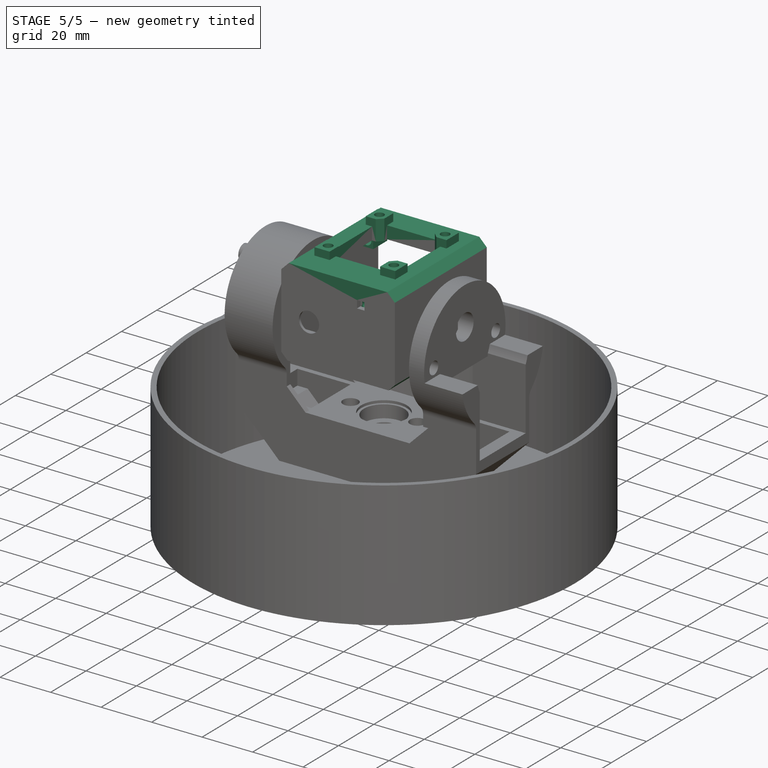
[diagram: stage 5 of 5 — iso view after this stage's code; geometry added in this stage tinted green]
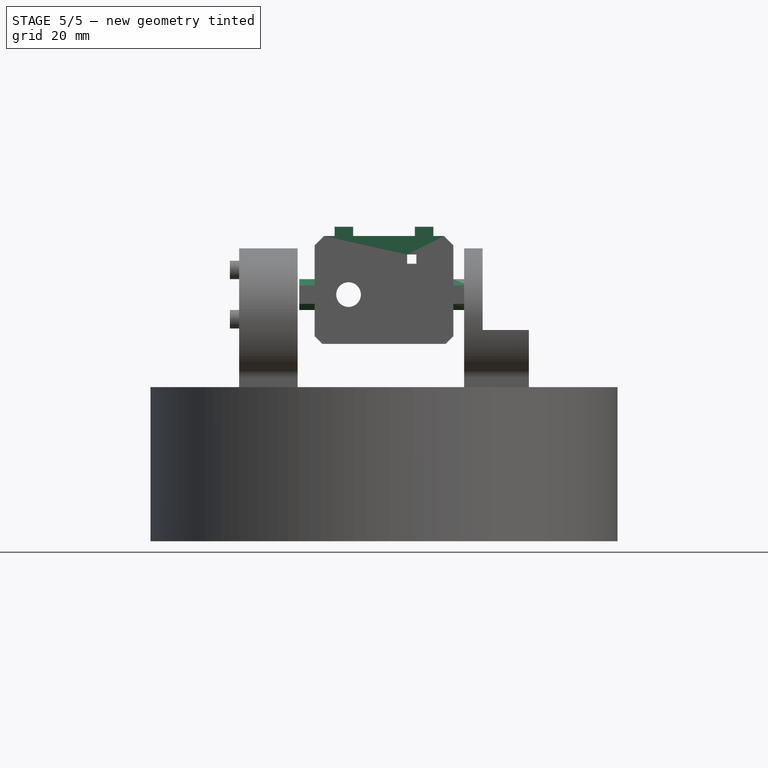
[diagram: stage 5 of 5 — front view after this stage's code; geometry added in this stage tinted green]
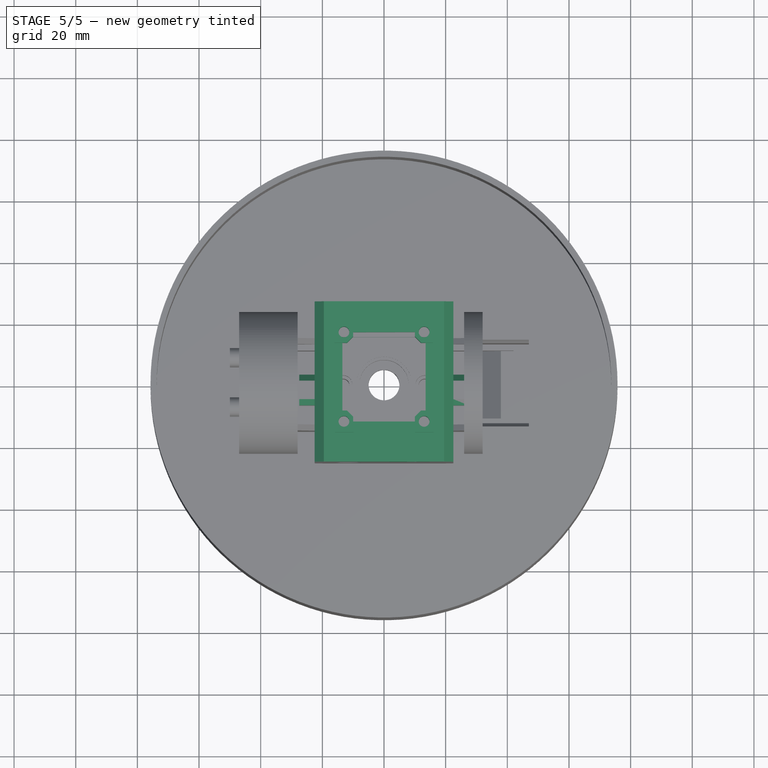
[diagram: stage 5 of 5 — top view after this stage's code; geometry added in this stage tinted green]
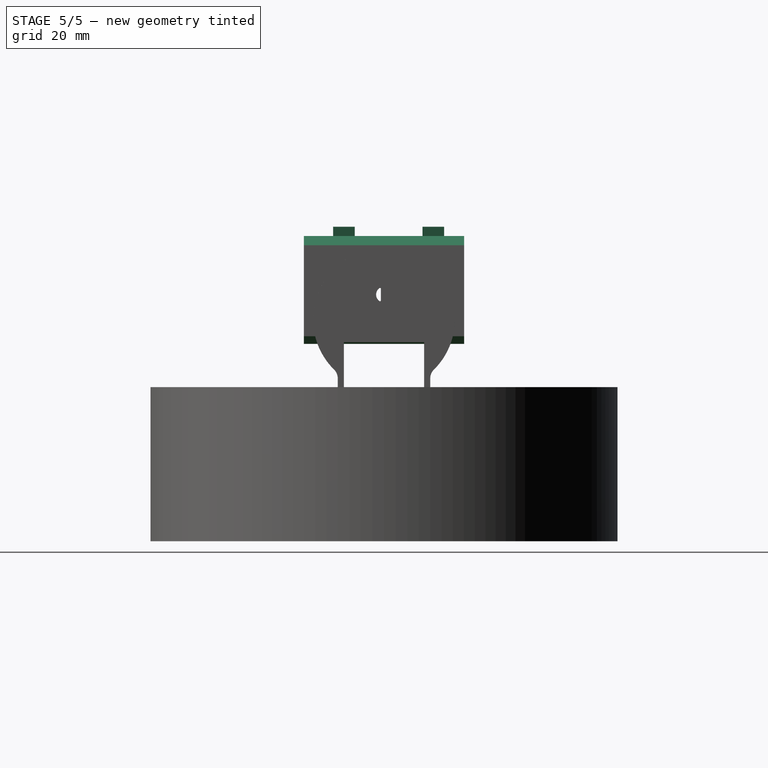
[diagram: stage 5 of 5 — right view after this stage's code; geometry added in this stage tinted green]
FEATURE [PartDesign::Plane] DatumPlane009
  AttachmentOffset = pos=(0,0,2) rot=(0,0,1;0rad)
  AttachmentSupport = -> [Pocket004]
  Length = 60.9531
  MapMode = 5
  Placement = pos=(-32,4.5,0) rot=(0.57735,-0.57735,-0.57735;4.18879rad)
  ResizeMode = 0
  Width = 70.4131
FEATURE [Sketcher::SketchObject] Sketch010
  ArcFitTolerance = 1e-06
  AttachmentSupport = -> [DatumPlane009]
  FullyConstrained = true
  MakeInternals = false
  MapMode = 5
  Placement = pos=(-32,4.5,0) rot=(0.57735,-0.57735,-0.57735;4.18879rad)
  sketch-geometry (2):
    g0: Circle CenterX=0 CenterY=-7 CenterZ=0 NormalX=0 NormalY=0 NormalZ=1 AngleXU=0 Radius=1.75
    g1: Circle CenterX=0 CenterY=-57 CenterZ=0 NormalX=0 NormalY=0 NormalZ=1 AngleXU=0 Radius=1.75
  constraints (6):
    c: Diameter(g0) = 3.5
    c: PointOnObject(g0,g-2)
    c: Diameter(g1) = 3.5
    c: PointOnObject(g1,g-2)
    c: DistanceY(g0,g-1) = 7
    c: DistanceY(g1,g0) = 50
FEATURE [PartDesign::Pocket] Pocket005
  BaseFeature = -> Pocket004
  Direction = (0,-1,0)
  Length = 5
  Length2 = 5
  Placement = pos=(-32,-19,0) rot=(0.57735,-0.57735,-0.57735;2.0944rad)
  Profile = -> Sketch010
  ReferenceAxis = -> Sketch010 [N_Axis]
  Refine = true
  Suppressed = false
  Type = 0
FEATURE [PartDesign::Plane] DatumPlane010
  AttachmentSupport = -> [Pocket005]
  Length = 60.9531
  MapMode = 5
  Placement = pos=(-32,26,0) rot=(0.57735,-0.57735,-0.57735;4.18879rad)
  ResizeMode = 0
  Width = 70.4131
FEATURE [Sketcher::SketchObject] Sketch011
  ArcFitTolerance = 1e-06
  AttachmentSupport = -> [DatumPlane010]
  FullyConstrained = true
  MakeInternals = false
  MapMode = 5
  Placement = pos=(-32,26,0) rot=(0.57735,-0.57735,-0.57735;4.18879rad)
  expr: Constraints[40] = <<Params>>.Body_Height / 2 - 2 mm
  expr: Constraints[41] = <<Params>>.Body_Height / 2 - 2 mm
  expr: Constraints[42] = <<Params>>.Body_Height / 2 - 2 mm
  expr: Constraints[43] = <<Params>>.Body_Height / 2 - 2 mm
  sketch-geometry (16):
    g0: LineSegment StartX=-14 StartY=-11.5 StartZ=0 EndX=-14 EndY=-16.5 EndZ=0
    g1: LineSegment StartX=-14 StartY=-16.5 StartZ=0 EndX=-9 EndY=-16.5 EndZ=0
    g2: LineSegment StartX=-9 StartY=-16.5 StartZ=0 EndX=-9 EndY=-11.5 EndZ=0
    g3: LineSegment StartX=-9 StartY=-11.5 StartZ=0 EndX=-14 EndY=-11.5 EndZ=0
    g4: LineSegment StartX=9 StartY=-16.5 StartZ=0 EndX=9 EndY=-11.5 EndZ=0
    g5: LineSegment StartX=9 StartY=-11.5 StartZ=0 EndX=14 EndY=-11.5 EndZ=0
    g6: LineSegment StartX=14 StartY=-11.5 StartZ=0 EndX=14 EndY=-16.5 EndZ=0
    g7: LineSegment StartX=14 StartY=-16.5 StartZ=0 EndX=9 EndY=-16.5 EndZ=0
    g8: LineSegment StartX=-14 StartY=-47.5 StartZ=0 EndX=-14 EndY=-52.5 EndZ=0
    g9: LineSegment StartX=-14 StartY=-52.5 StartZ=0 EndX=-9 EndY=-52.5 EndZ=0
    g10: LineSegment StartX=-9 StartY=-52.5 StartZ=0 EndX=-9 EndY=-47.5 EndZ=0
    g11: LineSegment StartX=-9 StartY=-47.5 StartZ=0 EndX=-14 EndY=-47.5 EndZ=0
    g12: LineSegment StartX=14 StartY=-47.5 StartZ=0 EndX=9 EndY=-47.5 EndZ=0
    g13: LineSegment StartX=9 StartY=-47.5 StartZ=0 EndX=9 EndY=-52.5 EndZ=0
    g14: LineSegment StartX=9 StartY=-52.5 StartZ=0 EndX=14 EndY=-52.5 EndZ=0
    g15: LineSegment StartX=14 StartY=-52.5 StartZ=0 EndX=14 EndY=-47.5 EndZ=0
  constraints (48):
    c: Coincident(g0,g1)
    c: Coincident(g1,g2)
    c: Coincident(g2,g3)
    c: Coincident(g3,g0)
    c: Vertical(g0)
    c: Vertical(g2)
    c: Horizontal(g1)
    c: Horizontal(g3)
    c: Distance(g0,g2) = 5
    c: Distance(g1,g3) = 5
    c: Coincident(g4,g5)
    c: Coincident(g5,g6)
    c: Coincident(g6,g7)
    c: Coincident(g7,g4)
    c: Vertical(g4)
    c: Vertical(g6)
    c: Horizontal(g5)
    c: Horizontal(g7)
    c: Distance(g4,g6) = 5
    c: Distance(g5,g7) = 5
    c: Coincident(g8,g9)
    c: Coincident(g9,g10)
    c: Coincident(g10,g11)
    c: Coincident(g11,g8)
    c: Vertical(g8)
    c: Vertical(g10)
    c: Horizontal(g9)
    c: Horizontal(g11)
    c: DistanceX(g11,g11) = 5
    c: DistanceY(g10,g10) = 5
    c: Coincident(g12,g13)
    c: Coincident(g13,g14)
    c: Coincident(g14,g15)
    c: Coincident(g15,g12)
    c: Horizontal(g12)
    c: Horizontal(g14)
    c: Vertical(g13)
    c: Vertical(g15)
    c: DistanceY(g15,g15) = 5
    c: Distance(g12,g12) = 5
    c: Distance(g-2,g6) = 14
    c: Distance(g0,g-2) = 14
    c: Distance(g15,g-2) = 14
    c: Distance(g8,g-2) = 14
    c: Distance(g5,g-1) = 11.5
    c: Distance(g-1,g12) = 47.5
    c: Distance(g-1,g3) = 11.5
    c: Distance(g11,g-1) = 47.5
FEATURE [PartDesign::Pad] Pad004
  BaseFeature = -> Pocket005
  Direction = (0,1,0)
  Length = 10
  Length2 = 10
  Placement = pos=(-32,-19,0) rot=(0.57735,-0.57735,-0.57735;2.0944rad)
  Profile = -> Sketch011
  ReferenceAxis = -> Sketch011 [N_Axis]
  Refine = true
  Reversed = true
  Suppressed = false
  Type = 0
FEATURE [Sketcher::SketchObject] Sketch012
  ArcFitTolerance = 1e-06
  AttachmentSupport = -> [DatumPlane010]
  FullyConstrained = true
  MakeInternals = false
  MapMode = 5
  Placement = pos=(-32,26,0) rot=(0.57735,-0.57735,-0.57735;4.18879rad)
  sketch-geometry (4):
    g0: LineSegment StartX=-14 StartY=-11.5 StartZ=0 EndX=-14 EndY=-52.5 EndZ=0
    g1: LineSegment StartX=-14 StartY=-52.5 StartZ=0 EndX=14 EndY=-52.5 EndZ=0
    g2: LineSegment StartX=14 StartY=-52.5 StartZ=0 EndX=14 EndY=-11.5 EndZ=0
    g3: LineSegment StartX=14 StartY=-11.5 StartZ=0 EndX=-14 EndY=-11.5 EndZ=0
  constraints (12):
    c: Coincident(g0,g1)
    c: Coincident(g1,g2)
    c: Coincident(g2,g3)
    c: Coincident(g3,g0)
    c: Vertical(g0)
    c: Vertical(g2)
    c: Horizontal(g1)
    c: Horizontal(g3)
    c: Distance(g2,g-2) = 14
    c: Distance(g3,g-1) = 11.5
    c: Distance(g2,g0) = 28
    c: Distance(g3,g1) = 41
FEATURE [PartDesign::Pocket] Pocket006
  BaseFeature = -> Pad004
  Direction = (0,-1,0)
  Length = 2
  Length2 = 5
  Placement = pos=(-32,-19,0) rot=(0.57735,-0.57735,-0.57735;2.0944rad)
  Profile = -> Sketch012
  ReferenceAxis = -> Sketch012 [N_Axis]
  Refine = true
  Suppressed = false
  Type = 0
FEATURE [PartDesign::Plane] DatumPlane011
  AttachmentSupport = -> [Pocket006]
  Length = 65.4923
  MapMode = 45
  Placement = pos=(18,24,11.5) rot=(0,0.707107,0.707107;3.14159rad)
  ResizeMode = 0
  Width = 60.5323
FEATURE [Sketcher::SketchObject] Sketch013
  ArcFitTolerance = 1e-06
  AttachmentSupport = -> [DatumPlane011]
  FullyConstrained = true
  MakeInternals = false
  MapMode = 5
  Placement = pos=(18,24,11.5) rot=(0,0.707107,0.707107;3.14159rad)
  sketch-geometry (8):
    g0: Circle CenterX=0 CenterY=0 CenterZ=0 NormalX=0 NormalY=0 NormalZ=1 AngleXU=0 Radius=1.75
    g1: Circle CenterX=36 CenterY=0 CenterZ=0 NormalX=0 NormalY=0 NormalZ=1 AngleXU=0 Radius=1.75
    g2: Circle CenterX=0 CenterY=-23 CenterZ=0 NormalX=0 NormalY=0 NormalZ=1 AngleXU=0 Radius=1.75
    g3: Circle CenterX=36 CenterY=-23 CenterZ=0 NormalX=0 NormalY=0 NormalZ=1 AngleXU=0 Radius=1.75
    g4: LineSegment [constr] StartX=0 StartY=-23 StartZ=0 EndX=36 EndY=-23 EndZ=0
    g5: LineSegment [constr] StartX=36 StartY=-23 StartZ=0 EndX=36 EndY=0 EndZ=0
    g6: LineSegment [constr] StartX=36 StartY=0 StartZ=0 EndX=0 EndY=0 EndZ=0
    g7: LineSegment [constr] StartX=0 StartY=0 StartZ=0 EndX=0 EndY=-23 EndZ=0
  constraints (20):
    c: Diameter(g0) = 3.5
    c: Coincident(g0,g-1)
    c: Diameter(g1) = 3.5
    c: PointOnObject(g1,g-1)
    c: Diameter(g2) = 3.5
    c: PointOnObject(g2,g-2)
    c: Diameter(g3) = 3.5
    c: Coincident(g4,g5)
    c: Coincident(g5,g6)
    c: Coincident(g6,g7)
    c: Coincident(g7,g4)
    c: Horizontal(g4)
    c: Horizontal(g6)
    c: Vertical(g5)
    c: Vertical(g7)
    c: Coincident(g4,g2)
    c: Coincident(g5,g1)
    c: Coincident(g3,g4)
    c: DistanceX(g6,g6) = 36
    c: DistanceY(g5,g5) = 23
FEATURE [PartDesign::Pocket] Pocket007
  BaseFeature = -> Pocket006
  Direction = (-3.49e-14,-1,5.22e-14)
  Length = 9
  Length2 = 5
  Placement = pos=(-32,-19,0) rot=(0.57735,-0.57735,-0.57735;2.0944rad)
  Profile = -> Sketch013
  ReferenceAxis = -> Sketch013 [N_Axis]
  Refine = true
  Suppressed = false
  Type = 0
FEATURE [PartDesign::Plane] DatumPlane012
  AttachmentSupport = -> [Pocket007]
  Length = 63.1247
  MapMode = 5
  Placement = pos=(-32,-19,-16) rot=(0.707107,-0.707107,0;3.14159rad)
  ResizeMode = 0
  Width = 70.6247
FEATURE [Sketcher::SketchObject] Sketch014
  ArcFitTolerance = 1e-06
  AttachmentSupport = -> [Pocket007]
  FullyConstrained = true
  MakeInternals = false
  MapMode = 5
  Placement = pos=(-32,-19,-16) rot=(0.707107,-0.707107,0;3.14159rad)
  sketch-geometry (4):
    g0: LineSegment StartX=0 StartY=-17 StartZ=0 EndX=-34 EndY=-17 EndZ=0
    g1: LineSegment StartX=-34 StartY=-17 StartZ=0 EndX=-34 EndY=-47 EndZ=0
    g2: LineSegment StartX=-34 StartY=-47 StartZ=0 EndX=0 EndY=-47 EndZ=0
    g3: LineSegment StartX=0 StartY=-47 StartZ=0 EndX=0 EndY=-17 EndZ=0
  constraints (12):
    c: Coincident(g0,g1)
    c: Coincident(g1,g2)
    c: Coincident(g2,g3)
    c: Coincident(g3,g0)
    c: Horizontal(g0)
    c: Horizontal(g2)
    c: Vertical(g1)
    c: Vertical(g3)
    c: PointOnObject(g0,g-2)
    c: Distance(g0,g-1) = 17
    c: DistanceX(g2,g2) = 34
    c: Distance(g0,g2) = 30
FEATURE [PartDesign::Pocket] Pocket008
  BaseFeature = -> Pocket007
  Direction = (0,0,1)
  Length = 0
  Length2 = 5
  Placement = pos=(-32,-19,0) rot=(0.57735,-0.57735,-0.57735;2.0944rad)
  Profile = -> Sketch014
  ReferenceAxis = -> Sketch014 [N_Axis]
  Refine = true
  Suppressed = false
  Type = 3
  UpToFace = -> Pocket007 [Face17]
FEATURE [PartDesign::Plane] DatumPlane013
  AttachmentOffset = pos=(0,0,2) rot=(0,0,1;0rad)
  AttachmentSupport = -> [Pocket008]
  Length = 63.1247
  MapMode = 5
  Placement = pos=(-32,-19,18) rot=(0,0,1;1.5708rad)
  ResizeMode = 0
  Width = 70.6247
FEATURE [Sketcher::SketchObject] Sketch015
  ArcFitTolerance = 1e-06
  AttachmentSupport = -> [DatumPlane013]
  FullyConstrained = true
  MakeInternals = false
  MapMode = 5
  Placement = pos=(-32,-19,18) rot=(0,0,1;1.5708rad)
  sketch-geometry (8):
    g0: LineSegment [constr] StartX=6 StartY=-19 StartZ=0 EndX=6 EndY=-45 EndZ=0
    g1: LineSegment [constr] StartX=6 StartY=-45 StartZ=0 EndX=35 EndY=-45 EndZ=0
    g2: LineSegment [constr] StartX=35 StartY=-45 StartZ=0 EndX=35 EndY=-19 EndZ=0
    g3: LineSegment [constr] StartX=35 StartY=-19 StartZ=0 EndX=6 EndY=-19 EndZ=0
    g4: Circle CenterX=6 CenterY=-19 CenterZ=0 NormalX=0 NormalY=0 NormalZ=1 AngleXU=0 Radius=1.75
    g5: Circle CenterX=35 CenterY=-19 CenterZ=0 NormalX=0 NormalY=0 NormalZ=1 AngleXU=0 Radius=1.75
    g6: Circle CenterX=6 CenterY=-45 CenterZ=0 NormalX=0 NormalY=0 NormalZ=1 AngleXU=0 Radius=1.75
    g7: Circle CenterX=35 CenterY=-45 CenterZ=0 NormalX=0 NormalY=0 NormalZ=1 AngleXU=0 Radius=1.75
  constraints (20):
    c: Coincident(g0,g1)
    c: Coincident(g1,g2)
    c: Coincident(g2,g3)
    c: Coincident(g3,g0)
    c: Vertical(g0)
    c: Vertical(g2)
    c: Horizontal(g1)
    c: Horizontal(g3)
    c: Distance(g0,g2) = 29
    c: Distance(g1,g3) = 26
    c: Distance(g3,g-1) = 19
    c: Distance(g-2,g0) = 6
    c: Diameter(g4) = 3.5
    c: Coincident(g4,g0)
    c: Diameter(g5) = 3.5
    c: Coincident(g5,g2)
    c: Coincident(g6,g0)
    c: Diameter(g6) = 3.5
    c: Diameter(g7) = 3.5
    c: Coincident(g7,g1)
FEATURE [PartDesign::Pocket] Pocket009
  BaseFeature = -> Pocket008
  Direction = (0,0,-1)
  Length = 5
  Length2 = 5
  Placement = pos=(-32,-19,0) rot=(0.57735,-0.57735,-0.57735;2.0944rad)
  Profile = -> Sketch015
  ReferenceAxis = -> Sketch015 [N_Axis]
  Refine = true
  Suppressed = false
  Type = 0
FEATURE [Sketcher::SketchObject] Sketch016
  ArcFitTolerance = 1e-06
  AttachmentSupport = -> [DatumPlane013]
  FullyConstrained = true
  MakeInternals = false
  MapMode = 5
  Placement = pos=(-32,-19,18) rot=(0,0,1;1.5708rad)
  sketch-geometry (12):
    g0: LineSegment StartX=6 StartY=-22 StartZ=0 EndX=6 EndY=-42 EndZ=0
    g1: LineSegment StartX=6 StartY=-42 StartZ=0 EndX=9.5 EndY=-42 EndZ=0
    g2: LineSegment StartX=35 StartY=-42 StartZ=0 EndX=35 EndY=-22 EndZ=0
    g3: LineSegment StartX=35 StartY=-22 StartZ=0 EndX=31.5 EndY=-22 EndZ=0
    g4: LineSegment StartX=9.5 StartY=-18.5 StartZ=0 EndX=9.5 EndY=-22 EndZ=0
    g5: LineSegment StartX=9.5 StartY=-45.5 StartZ=0 EndX=31.5 EndY=-45.5 EndZ=0
    g6: LineSegment StartX=31.5 StartY=-18.5 StartZ=0 EndX=9.5 EndY=-18.5 EndZ=0
    g7: LineSegment StartX=9.5 StartY=-22 StartZ=0 EndX=6 EndY=-22 EndZ=0
    g8: LineSegment StartX=9.5 StartY=-42 StartZ=0 EndX=9.5 EndY=-45.5 EndZ=0
    g9: LineSegment StartX=31.5 StartY=-42 StartZ=0 EndX=35 EndY=-42 EndZ=0
    g10: LineSegment StartX=31.5 StartY=-22 StartZ=0 EndX=31.5 EndY=-18.5 EndZ=0
    g11: LineSegment StartX=31.5 StartY=-45.5 StartZ=0 EndX=31.5 EndY=-42 EndZ=0
  constraints (37):
    c: Coincident(g0,g1)
    c: Coincident(g9,g2)
    c: Coincident(g2,g3)
    c: Coincident(g7,g0)
    c: Vertical(g0)
    c: Vertical(g2)
    c: Horizontal(g1)
    c: Horizontal(g3)
    c: Distance(g0,g2) = 29
    c: Distance(g1,g7) = 20
    c: Coincident(g8,g5)
    c: Coincident(g10,g6)
    c: Coincident(g6,g4)
    c: Vertical(g4)
    c: Horizontal(g5)
    c: Horizontal(g6)
    c: PointOnObject(g3,g10)
    c: Coincident(g4,g7)
    c: Coincident(g1,g8)
    c: PointOnObject(g10,g3)
    c: Horizontal(g9)
    c: Vertical(g8)
    c: Vertical(g10)
    c: Equal(g4,g10)
    c: Equal(g7,g3)
    c: Equal(g3,g9)
    c: Equal(g9,g1)
    c: Equal(g0,g2)
    c: Distance(g6,g-1) = 18.5
    c: Distance(g8,g8) = 3.5
    c: Horizontal(g7)
    c: Coincident(g11,g5)
    c: Vertical(g11)
    c: Coincident(g9,g11)
    c: Distance(g0,g-2) = 6
    c: Equal(g10,g11)
    c: DistanceX(g6,g6) = 22
FEATURE [PartDesign::Pocket] Pocket010
  BaseFeature = -> Pocket009
  Direction = (0,0,-1)
  Length = 5
  Length2 = 5
  Placement = pos=(-32,-19,0) rot=(0.57735,-0.57735,-0.57735;2.0944rad)
  Profile = -> Sketch016
  ReferenceAxis = -> Sketch016 [N_Axis]
  Refine = true
  Suppressed = false
  Type = 0
FEATURE [PartDesign::Chamfer] Chamfer
  Angle = 45
  Base = -> Pocket010 [Edge263,Edge254,Edge260,Edge257]
  BaseFeature = -> Pocket010
  ChamferType = 0
  FlipDirection = false
  Placement = pos=(-32,-19,0) rot=(0.57735,-0.57735,-0.57735;2.0944rad)
  Refine = true
  Size = 2
  Size2 = 1
  SupportTransform = false
  Suppressed = false
  UseAllEdges = false
FEATURE [PartDesign::Chamfer] Chamfer001
  Angle = 45
  Base = -> Chamfer [Edge325,Edge323,Edge321,Edge320,Edge345,Edge343,Edge347,Edge349]
  BaseFeature = -> Chamfer
  ChamferType = 0
  FlipDirection = false
  Placement = pos=(-32,-19,0) rot=(0.57735,-0.57735,-0.57735;2.0944rad)
  Refine = true
  Size = 2
  Size2 = 1
  SupportTransform = false
  Suppressed = false
  UseAllEdges = false
FEATURE [PartDesign::Chamfer] Chamfer002
  Angle = 45
  Base = -> Chamfer001 [Edge38,Edge10]
  BaseFeature = -> Chamfer001
  ChamferType = 0
  FlipDirection = false
  Placement = pos=(-32,-19,0) rot=(0.57735,-0.57735,-0.57735;2.0944rad)
  Refine = true
  Size = 2.5
  Size2 = 1
  SupportTransform = false
  Suppressed = false
  UseAllEdges = false
FEATURE [PartDesign::Plane] DatumPlane014
  AttachmentSupport = -> [Chamfer002]
  Length = 60.2421
  MapMode = 11
  Placement = pos=(27.5,-2.5,-1.34e-14) rot=(0,1,0;1.5708rad)
  ResizeMode = 0
  Width = 62.2021
FEATURE [Sketcher::SketchObject] Sketch019
  ArcFitTolerance = 1e-06
  AttachmentSupport = -> [DatumPlane014]
  FullyConstrained = true
  MakeInternals = false
  MapMode = 5
  Placement = pos=(27.5,-2.5,-1.34e-14) rot=(0,1,0;1.5708rad)
  sketch-geometry (5):
    g0: LineSegment StartX=-2 StartY=-1.5 StartZ=0 EndX=2 EndY=-1.5 EndZ=0
    g1: LineSegment StartX=2 StartY=1.5 StartZ=0 EndX=-2 EndY=1.5 EndZ=0
    g2: GeomPoint [constr] X=0 Y=0 Z=0
    g3: ArcOfCircle CenterX=0 CenterY=0 CenterZ=0 NormalX=0 NormalY=0 NormalZ=1 AngleXU=0 Radius=2.5 StartAngle=0.643501 EndAngle=2.49809
    g4: ArcOfCircle CenterX=0 CenterY=0 CenterZ=0 NormalX=0 NormalY=0 NormalZ=1 AngleXU=0 Radius=2.5 StartAngle=3.78509 EndAngle=5.63968
  constraints (14):
    c: Horizontal(g0)
    c: Horizontal(g1)
    c: Coincident(g2,g-1)
    c: Diameter(g3) = 5
    c: Coincident(g3,g2)
    c: PointOnObject(g0,g4)
    c: Coincident(g4,g0)
    c: Coincident(g3,g1)
    c: Equal(g3,g4)
    c: Coincident(g3,g1)
    c: PointOnObject(g4,g0)
    c: Coincident(g3,g4)
    c: Distance(g2,g1) = 1.5
    c: Distance(g2,g0) = 1.5
FEATURE [PartDesign::Pad] Pad006
  BaseFeature = -> Chamfer002
  Direction = (1,0,2e-16)
  Length = 5
  Length2 = 10
  Placement = pos=(-32,-19,0) rot=(0.57735,-0.57735,-0.57735;2.0944rad)
  Profile = -> Sketch019
  ReferenceAxis = -> Sketch019 [N_Axis]
  Refine = true
  Reversed = true
  Suppressed = false
  Type = 0
FEATURE [PartDesign::Pad] Pad007
  BaseFeature = -> Pad006
  Direction = (0,1,-1.3e-15)
  Length = 0.5
  Length2 = 10
  Placement = pos=(-32,-19,0) rot=(0.57735,-0.57735,-0.57735;2.0944rad)
  Profile = -> Pad006 [Face86]
  Refine = true
  Suppressed = false
  Type = 0
FEATURE [PartDesign::Pad] Pad008
  BaseFeature = -> Pad007
  Direction = (1.4e-15,0,1)
  Length = 3
  Length2 = 10
  Placement = pos=(-32,-19,0) rot=(0.57735,-0.57735,-0.57735;2.0944rad)
  Profile = -> Pad007 [Face4]
  Refine = true
  Suppressed = false
  Type = 0
FEATURE [PartDesign::Chamfer] Chamfer003
  Angle = 45
  Base = -> Pad008 [Edge416,Edge398]
  BaseFeature = -> Pad008
  ChamferType = 0
  FlipDirection = false
  Placement = pos=(-32,-19,0) rot=(0.57735,-0.57735,-0.57735;2.0944rad)
  Refine = true
  Size = 3
  Size2 = 1
  SupportTransform = false
  Suppressed = false
  UseAllEdges = false
FEATURE [Sketcher::SketchObject] Sketch020
  ArcFitTolerance = 1e-06
  AttachmentSupport = -> [Chamfer003]
  ExternalGeometry = -> [Chamfer003]
  FullyConstrained = true
  MakeInternals = false
  MapMode = 5
  Placement = pos=(-32,-19,19) rot=(0,0,1;1.5708rad)
  sketch-geometry (24):
    g0: LineSegment StartX=2.5 StartY=-16 StartZ=0 EndX=2.5 EndY=-22 EndZ=0
    g1: LineSegment StartX=2.5 StartY=-22 StartZ=0 EndX=7.5 EndY=-22 EndZ=0
    g2: LineSegment StartX=9.5 StartY=-20 StartZ=0 EndX=9.5 EndY=-16 EndZ=0
    g3: LineSegment StartX=9.5 StartY=-16 StartZ=0 EndX=2.5 EndY=-16 EndZ=0
    g4: GeomPoint [constr] X=6 Y=-19 Z=0
    g5: LineSegment StartX=7.5 StartY=-22 StartZ=0 EndX=9.5 EndY=-20 EndZ=0
    g6: LineSegment StartX=2.5 StartY=-48 StartZ=0 EndX=9.5 EndY=-48 EndZ=0
    g7: LineSegment StartX=9.5 StartY=-48 StartZ=0 EndX=9.5 EndY=-44 EndZ=0
    g8: LineSegment StartX=7.5 StartY=-42 StartZ=0 EndX=2.5 EndY=-42 EndZ=0
    g9: LineSegment StartX=2.5 StartY=-42 StartZ=0 EndX=2.5 EndY=-48 EndZ=0
    g10: GeomPoint [constr] X=6 Y=-45 Z=0
    g11: LineSegment StartX=31.5 StartY=-48 StartZ=0 EndX=38.5 EndY=-48 EndZ=0
    g12: LineSegment StartX=38.5 StartY=-48 StartZ=0 EndX=38.5 EndY=-42 EndZ=0
    g13: LineSegment StartX=31.5 StartY=-44 StartZ=0 EndX=31.5 EndY=-48 EndZ=0
    g14: GeomPoint [constr] X=35 Y=-45 Z=0
    g15: LineSegment StartX=33.5 StartY=-22 StartZ=0 EndX=38.5 EndY=-22 EndZ=0
    g16: LineSegment StartX=38.5 StartY=-22 StartZ=0 EndX=38.5 EndY=-16 EndZ=0
    g17: LineSegment StartX=38.5 StartY=-16 StartZ=0 EndX=31.5 EndY=-16 EndZ=0
    g18: LineSegment StartX=31.5 StartY=-16 StartZ=0 EndX=31.5 EndY=-20 EndZ=0
    g19: GeomPoint [constr] X=35 Y=-19 Z=0
    g20: LineSegment StartX=31.5 StartY=-20 StartZ=0 EndX=33.5 EndY=-22 EndZ=0
    g21: LineSegment StartX=38.5 StartY=-42 StartZ=0 EndX=33.5 EndY=-42 EndZ=0
    g22: LineSegment StartX=33.5 StartY=-42 StartZ=0 EndX=31.5 EndY=-44 EndZ=0
    g23: LineSegment StartX=7.5 StartY=-42 StartZ=0 EndX=9.5 EndY=-44 EndZ=0
  constraints (57):
    c: Coincident(g0,g1)
    c: Coincident(g2,g3)
    c: Coincident(g3,g0)
    c: Vertical(g0)
    c: Vertical(g2)
    c: Horizontal(g1)
    c: Horizontal(g3)
    c: Coincident(g4,g-3)
    c: PointOnObject(g-4,g2)
    c: Coincident(g5,g-5)
    c: Coincident(g5,g-4)
    c: PointOnObject(g2,g5)
    c: Coincident(g1,g5)
    c: DistanceX(g3,g3) = 7
    c: DistanceY(g0,g0) = 6
    c: Coincident(g6,g7)
    c: Coincident(g8,g9)
    c: Coincident(g9,g6)
    c: Horizontal(g6)
    c: Horizontal(g8)
    c: Vertical(g7)
    c: Vertical(g9)
    c: Distance(g7,g9) = 7
    c: Distance(g6,g8) = 6
    c: Coincident(g10,g-8)
    c: Coincident(g11,g12)
    c: Coincident(g13,g11)
    c: Horizontal(g11)
    c: Vertical(g12)
    c: Vertical(g13)
    c: Symmetric(g12,g11,g14)
    c: Distance(g12,g13) = 7
    c: Coincident(g14,g-7)
    c: Coincident(g15,g16)
    c: Coincident(g16,g17)
    c: Coincident(g17,g18)
    c: Horizontal(g15)
    c: Horizontal(g17)
    c: Vertical(g16)
    c: Vertical(g18)
    c: Coincident(g19,g-6)
    c: PointOnObject(g13,g-10)
    c: Coincident(g20,g18)
    c: Coincident(g20,g15)
    c: Coincident(g21,g12)
    c: Coincident(g21,g-10)
    c: Horizontal(g21)
    c: Coincident(g22,g21)
    c: Coincident(g22,g13)
    c: Coincident(g23,g8)
    c: Coincident(g23,g7)
    c: Coincident(g18,g-11)
    c: Coincident(g15,g-11)
    c: Coincident(g8,g-9)
    c: Coincident(g7,g-9)
    c: DistanceX(g17,g17) = 7
    c: DistanceY(g16,g16) = 6
FEATURE [PartDesign::Pad] Pad009
  BaseFeature = -> Chamfer003
  Direction = (0,1.6e-15,1)
  Length = 3
  Length2 = 10
  Placement = pos=(-32,-19,0) rot=(0.57735,-0.57735,-0.57735;2.0944rad)
  Profile = -> Sketch020
  ReferenceAxis = -> Sketch020 [N_Axis]
  Refine = true
  Suppressed = false
  Type = 0
FEATURE [Sketcher::SketchObject] Sketch021
  ArcFitTolerance = 1e-06
  AttachmentSupport = -> [Pad009]
  ExternalGeometry = -> [Pad009]
  FullyConstrained = true
  MakeInternals = false
  MapMode = 5
  Placement = pos=(-27.5,-19,0) rot=(0.57735,-0.57735,-0.57735;2.0944rad)
  sketch-geometry (2):
    g0: LineSegment StartX=-18 StartY=2 StartZ=0 EndX=-18 EndY=-2 EndZ=0
    g1: ArcOfCircle CenterX=-16.5 CenterY=-1.18e-14 CenterZ=0 NormalX=0 NormalY=0 NormalZ=1 AngleXU=0 Radius=2.5 StartAngle=2.2143 EndAngle=4.06889
  constraints (5):
    c: Coincident(g0,g-4)
    c: Coincident(g0,g-4)
    c: Coincident(g1,g0)
    c: Coincident(g1,g0)
    c: Equal(g1,g-3)
FEATURE [PartDesign::Pad] Pad010
  BaseFeature = -> Pad009
  Direction = (-1,0,1.3e-15)
  Length = 5
  Length2 = 10
  Placement = pos=(-32,-19,0) rot=(0.57735,-0.57735,-0.57735;2.0944rad)
  Profile = -> Sketch021
  ReferenceAxis = -> Sketch021 [N_Axis]
  Refine = true
  Reversed = true
  Suppressed = false
  Type = 0
FEATURE [PartDesign::Pocket] Pocket011
  BaseFeature = -> Pad010
  Direction = (3e-16,-2.5,1.5e-15)
  Length = 3
  Length2 = 5
  Placement = pos=(-32,-19,0) rot=(0.57735,-0.57735,-0.57735;2.0944rad)
  Profile = -> Pad010 [Face138]
  Refine = true
  Suppressed = false
  Type = 0
FEATURE [PartDesign::Pocket] Pocket012
  BaseFeature = -> Pocket011
  Direction = (3e-16,-2.5,2.5e-15)
  Length = 2
  Length2 = 5
  Placement = pos=(-32,-19,0) rot=(0.57735,-0.57735,-0.57735;2.0944rad)
  Profile = -> Pocket011 [Face182]
  Refine = true
  Suppressed = false
  Type = 0
FEATURE [PartDesign::Pocket] Pocket013
  BaseFeature = -> Pocket012
  Direction = (4e-16,1.6e-15,1)
  Length = 5
  Length2 = 5
  Placement = pos=(-32,-19,0) rot=(0.57735,-0.57735,-0.57735;2.0944rad)
  Profile = -> Pocket012 [Face169,Face167,Face168,Face170]
  Refine = true
  Suppressed = false
  Type = 1
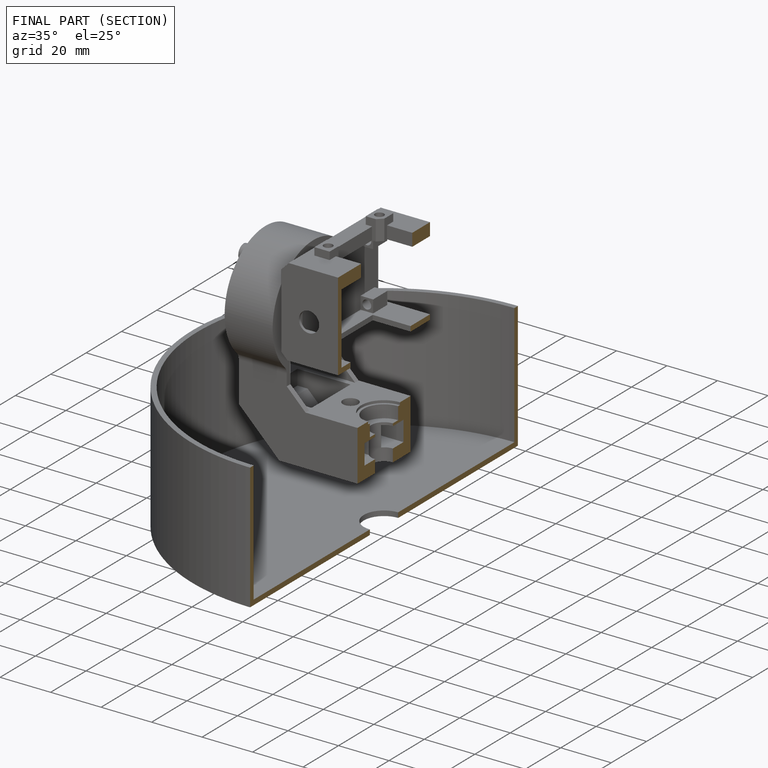
[diagram: finished part — half-section view (interior)]
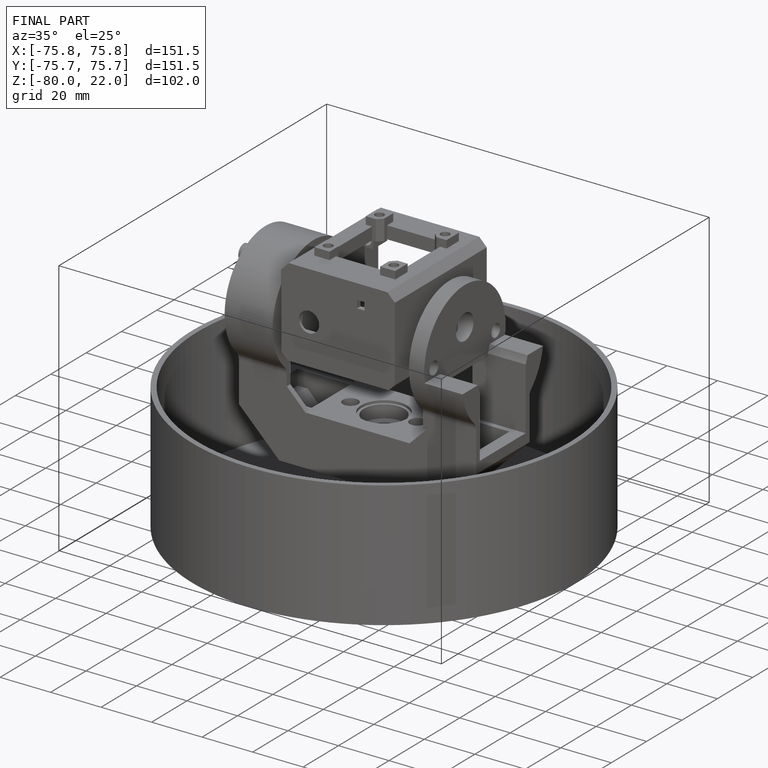
[diagram: finished part — iso view with bounding-box wireframe]
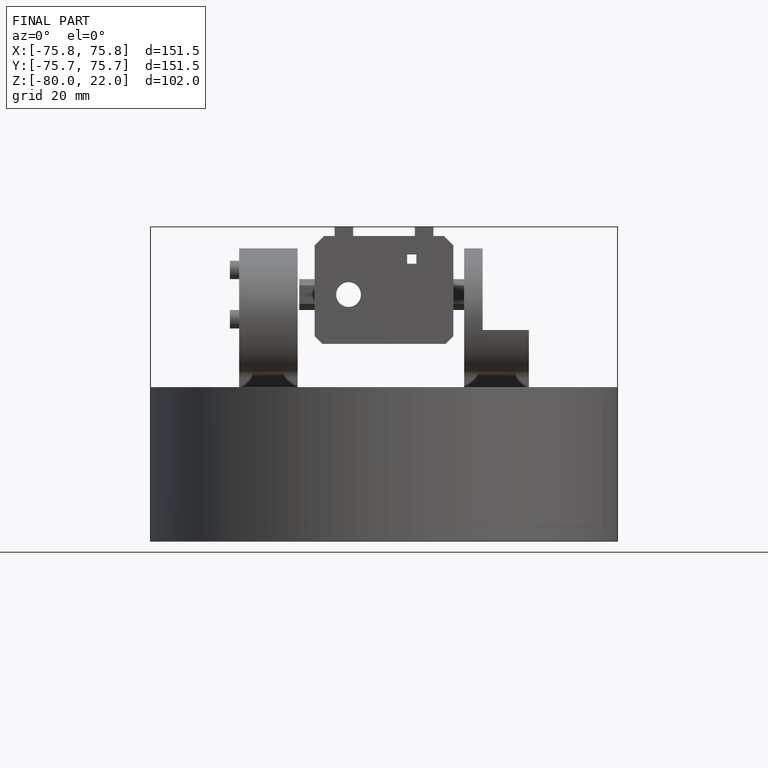
[diagram: finished part — front view with bounding-box wireframe]
